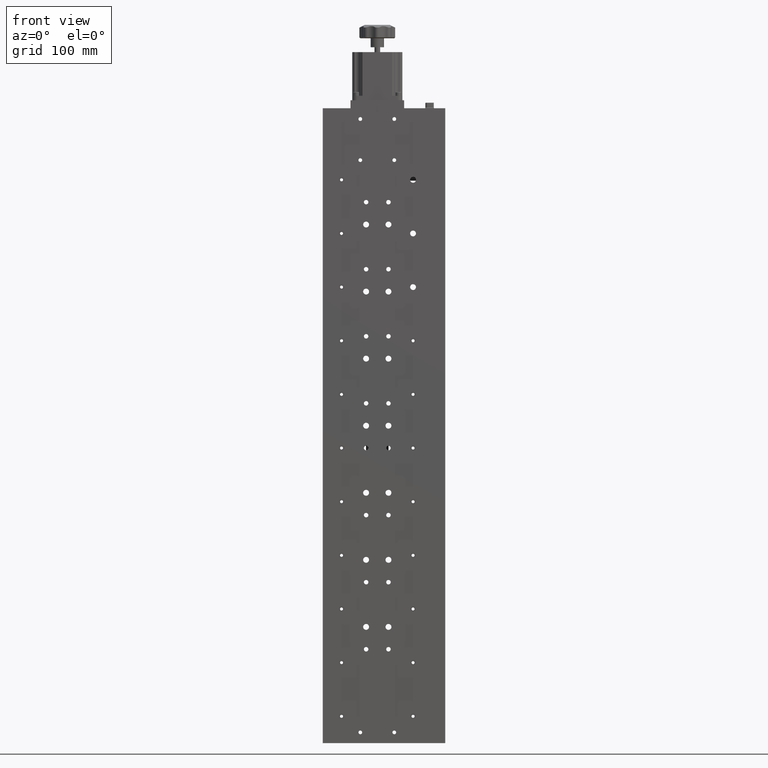
[diagram: clean part render]
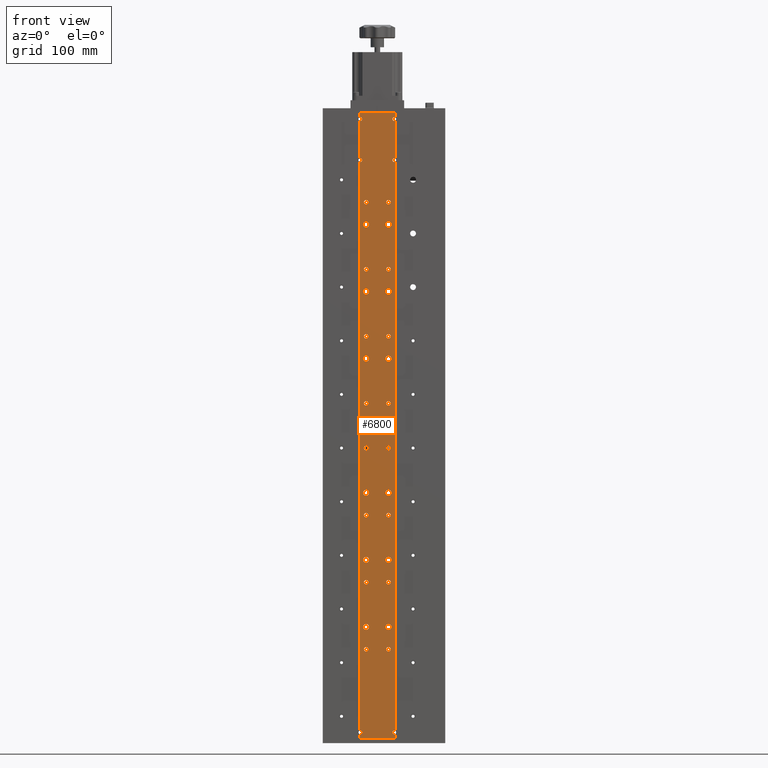
[diagram: same view with one face highlighted and labeled with its STEP entity id]
A machine part, front view. The second image highlights one B-rep face of the part: STEP entity #6800.
In plain terms, the highlighted planar face has unit normal (-0, 1, 0).
Its self-contained STEP definition (entity closure, byte-faithful):
#26 = CARTESIAN_POINT ( 'NONE',  ( -23.11080835603997130, -10.41765062064795266, -224.9999999999999716 ) ) ;
#129 = ORIENTED_EDGE ( 'NONE', *, *, #26567, .T. ) ;
#133 = AXIS2_PLACEMENT_3D ( 'NONE', #20714, #30145, #16394 ) ;
#144 = CARTESIAN_POINT ( 'NONE',  ( -30.61080835603994288, -10.41765062064795266, -341.1533814687379618 ) ) ;
#149 = AXIS2_PLACEMENT_3D ( 'NONE', #9864, #29015, #5538 ) ;
#165 = AXIS2_PLACEMENT_3D ( 'NONE', #5036, #21708, #16626 ) ;
#214 = CARTESIAN_POINT ( 'NONE',  ( -29.61080835603994288, -10.41765062064795266, 299.1000000000000227 ) ) ;
#300 = EDGE_CURVE ( 'NONE', #13090, #27803, #9830, .T. ) ;
#355 = DIRECTION ( 'NONE',  ( -3.689503073101735203E-32, 1.000000000000000000, 0.000000000000000000 ) ) ;
#384 = AXIS2_PLACEMENT_3D ( 'NONE', #19061, #15635, #5760 ) ;
#407 = AXIS2_PLACEMENT_3D ( 'NONE', #13355, #13960, #20598 ) ;
#423 = EDGE_CURVE ( 'NONE', #11713, #19121, #15704, .T. ) ;
#483 = DIRECTION ( 'NONE',  ( -3.689503073101735203E-32, 1.000000000000000000, 0.000000000000000000 ) ) ;
#493 = DIRECTION ( 'NONE',  ( 0.000000000000000000, 0.000000000000000000, 1.000000000000000000 ) ) ;
#515 = DIRECTION ( 'NONE',  ( -3.689503073101735203E-32, 1.000000000000000000, 0.000000000000000000 ) ) ;
#538 = DIRECTION ( 'NONE',  ( -3.689503073101735203E-32, 1.000000000000000000, 0.000000000000000000 ) ) ;
#567 = DIRECTION ( 'NONE',  ( -3.689503073101735203E-32, 1.000000000000000000, 0.000000000000000000 ) ) ;
#607 = CIRCLE ( 'NONE', #19357, 2.500000000000002220 ) ;
#674 = AXIS2_PLACEMENT_3D ( 'NONE', #13708, #25745, #16329 ) ;
#744 = DIRECTION ( 'NONE',  ( -3.689503073101735203E-32, 1.000000000000000000, 0.000000000000000000 ) ) ;
#754 = VERTEX_POINT ( 'NONE', #14335 ) ;
#755 = AXIS2_PLACEMENT_3D ( 'NONE', #3009, #23708, #2559 ) ;
#863 = CARTESIAN_POINT ( 'NONE',  ( -23.11080835603997130, -10.41765062064795266, 153.3000000000000114 ) ) ;
#967 = CIRCLE ( 'NONE', #13305, 2.099999999999992539 ) ;
#1013 = DIRECTION ( 'NONE',  ( 0.000000000000000000, 0.000000000000000000, 1.000000000000000000 ) ) ;
#1030 = CARTESIAN_POINT ( 'NONE',  ( -23.11080835603997130, -10.41765062064795266, -3.299999999999997158 ) ) ;
#1047 = FACE_BOUND ( 'NONE', #15268, .T. ) ;
#1057 = CIRCLE ( 'NONE', #18328, 2.099999999999990763 ) ;
#1200 = FACE_BOUND ( 'NONE', #14668, .T. ) ;
#1287 = CARTESIAN_POINT ( 'NONE',  ( 1.889191643960028255, -10.41765062064795266, -228.2999999999999829 ) ) ;
#1296 = EDGE_CURVE ( 'NONE', #27717, #25334, #1880, .T. ) ;
#1312 = ORIENTED_EDGE ( 'NONE', *, *, #21384, .T. ) ;
#1337 = ORIENTED_EDGE ( 'NONE', *, *, #15959, .T. ) ;
#1354 = FACE_BOUND ( 'NONE', #5102, .T. ) ;
#1361 = CARTESIAN_POINT ( 'NONE',  ( -23.11080835603997130, -10.41765062064795266, 221.6999999999999886 ) ) ;
#1374 = ORIENTED_EDGE ( 'NONE', *, *, #21287, .T. ) ;
#1390 = DIRECTION ( 'NONE',  ( -3.689503073101735203E-32, 1.000000000000000000, 0.000000000000000000 ) ) ;
#1403 = ORIENTED_EDGE ( 'NONE', *, *, #21630, .T. ) ;
#1499 = ORIENTED_EDGE ( 'NONE', *, *, #9810, .T. ) ;
#1510 = CARTESIAN_POINT ( 'NONE',  ( 1.889191643960027811, -10.41765062064795266, 0.000000000000000000 ) ) ;
#1528 = EDGE_CURVE ( 'NONE', #19160, #23508, #26072, .T. ) ;
#1556 = AXIS2_PLACEMENT_3D ( 'NONE', #26962, #29273, #7817 ) ;
#1641 = ORIENTED_EDGE ( 'NONE', *, *, #11686, .T. ) ;
#1653 = CIRCLE ( 'NONE', #165, 2.099999999999990763 ) ;
#1690 = CIRCLE ( 'NONE', #22885, 2.500000000000002220 ) ;
#1703 = DIRECTION ( 'NONE',  ( 0.000000000000000000, 0.000000000000000000, 1.000000000000000000 ) ) ;
#1717 = ORIENTED_EDGE ( 'NONE', *, *, #2264, .T. ) ;
#1734 = CARTESIAN_POINT ( 'NONE',  ( -23.11080835603994288, -10.41765062064795266, -252.4999999999999432 ) ) ;
#1845 = CARTESIAN_POINT ( 'NONE',  ( 8.389191643960051792, -10.41765062064795089, 299.1000000000000227 ) ) ;
#1860 = DIRECTION ( 'NONE',  ( -3.689503073101735203E-32, 1.000000000000000000, 0.000000000000000000 ) ) ;
#1880 = CIRCLE ( 'NONE', #17666, 2.499999999999995115 ) ;
#1891 = DIRECTION ( 'NONE',  ( -3.689503073101735203E-32, 1.000000000000000000, 0.000000000000000000 ) ) ;
#1900 = ORIENTED_EDGE ( 'NONE', *, *, #423, .T. ) ;
#1933 = EDGE_LOOP ( 'NONE', ( #10325, #16321 ) ) ;
#1971 = DIRECTION ( 'NONE',  ( -3.689503073101735203E-32, 1.000000000000000000, 0.000000000000000000 ) ) ;
#1972 = DIRECTION ( 'NONE',  ( 0.000000000000000000, 0.000000000000000000, 1.000000000000000000 ) ) ;
#1998 = CARTESIAN_POINT ( 'NONE',  ( 9.389191643960044686, -10.41765062064795266, -344.8466185312618677 ) ) ;
#2041 = EDGE_CURVE ( 'NONE', #21169, #17340, #15450, .T. ) ;
#2043 = EDGE_LOOP ( 'NONE', ( #14653, #30527 ) ) ;
#2048 = ORIENTED_EDGE ( 'NONE', *, *, #15003, .T. ) ;
#2049 = EDGE_CURVE ( 'NONE', #12492, #7953, #19400, .T. ) ;
#2102 = DIRECTION ( 'NONE',  ( 0.000000000000000000, 0.000000000000000000, 1.000000000000000000 ) ) ;
#2115 = DIRECTION ( 'NONE',  ( -1.000000000000000000, -3.029454718961630664E-18, 0.000000000000000000 ) ) ;
#2138 = CARTESIAN_POINT ( 'NONE',  ( 1.889191643960055567, -10.41765062064795444, 27.50000000000004619 ) ) ;
#2164 = AXIS2_PLACEMENT_3D ( 'NONE', #19977, #18129, #22744 ) ;
#2176 = VERTEX_POINT ( 'NONE', #5026 ) ;
#2189 = EDGE_LOOP ( 'NONE', ( #1900, #20174 ) ) ;
#2201 = CIRCLE ( 'NONE', #2712, 2.500000000000002220 ) ;
#2264 = EDGE_CURVE ( 'NONE', #10556, #28970, #16464, .T. ) ;
#2283 = CIRCLE ( 'NONE', #27439, 3.299999999999997158 ) ;
#2336 = AXIS2_PLACEMENT_3D ( 'NONE', #23726, #4904, #2883 ) ;
#2355 = AXIS2_PLACEMENT_3D ( 'NONE', #26166, #7320, #28775 ) ;
#2386 = VERTEX_POINT ( 'NONE', #4386 ) ;
#2489 = DIRECTION ( 'NONE',  ( -3.029454718961704619E-18, 1.000000000000000000, 0.000000000000000000 ) ) ;
#2559 = DIRECTION ( 'NONE',  ( 0.000000000000000000, 0.000000000000000000, 1.000000000000000000 ) ) ;
#2599 = ORIENTED_EDGE ( 'NONE', *, *, #3012, .T. ) ;
#2622 = CARTESIAN_POINT ( 'NONE',  ( 9.389191643960048239, -10.41765062064795266, 341.1533814687380755 ) ) ;
#2627 = AXIS2_PLACEMENT_3D ( 'NONE', #20783, #18929, #4721 ) ;
#2632 = DIRECTION ( 'NONE',  ( -3.689503073101735203E-32, 1.000000000000000000, 0.000000000000000000 ) ) ;
#2667 = CIRCLE ( 'NONE', #18453, 2.500000000000002220 ) ;
#2711 = CIRCLE ( 'NONE', #19457, 3.299999999999997158 ) ;
#2712 = AXIS2_PLACEMENT_3D ( 'NONE', #11695, #20974, #1972 ) ;
#2769 = CARTESIAN_POINT ( 'NONE',  ( 1.889191643960052014, -10.41765062064795266, -97.49999999999998579 ) ) ;
#2792 = DIRECTION ( 'NONE',  ( 0.000000000000000000, 0.000000000000000000, 1.000000000000000000 ) ) ;
#2820 = CARTESIAN_POINT ( 'NONE',  ( -23.11080835603994288, -10.41765062064795266, 25.00000000000004974 ) ) ;
#2847 = ORIENTED_EDGE ( 'NONE', *, *, #6240, .T. ) ;
#2855 = CARTESIAN_POINT ( 'NONE',  ( 8.389191643960051792, -10.41765062064795444, 343.0000000000000000 ) ) ;
#2866 = VERTEX_POINT ( 'NONE', #28237 ) ;
#2883 = DIRECTION ( 'NONE',  ( -1.000000000000000000, 0.000000000000000000, 0.000000000000000000 ) ) ;
#2887 = VERTEX_POINT ( 'NONE', #2138 ) ;
#2951 = CARTESIAN_POINT ( 'NONE',  ( 1.889191643960027811, -10.41765062064795266, 228.2999999999999829 ) ) ;
#2958 = VERTEX_POINT ( 'NONE', #1030 ) ;
#2960 = DIRECTION ( 'NONE',  ( 0.000000000000000000, 0.000000000000000000, 1.000000000000000000 ) ) ;
#2961 = VERTEX_POINT ( 'NONE', #26373 ) ;
#3009 = CARTESIAN_POINT ( 'NONE',  ( -23.11080835603994288, -10.41765062064795266, 100.0000000000000284 ) ) ;
#3012 = EDGE_CURVE ( 'NONE', #23990, #2176, #7541, .T. ) ;
#3044 = VERTEX_POINT ( 'NONE', #17721 ) ;
#3051 = VERTEX_POINT ( 'NONE', #3353 ) ;
#3162 = DIRECTION ( 'NONE',  ( 0.000000000000000000, 0.000000000000000000, 1.000000000000000000 ) ) ;
#3173 = VERTEX_POINT ( 'NONE', #8749 ) ;
#3183 = AXIS2_PLACEMENT_3D ( 'NONE', #1510, #29636, #10623 ) ;
#3200 = VECTOR ( 'NONE', #5656, 1000.000000000000000 ) ;
#3210 = FACE_BOUND ( 'NONE', #27963, .T. ) ;
#3235 = DIRECTION ( 'NONE',  ( -3.689503073101735203E-32, 1.000000000000000000, 0.000000000000000000 ) ) ;
#3250 = CARTESIAN_POINT ( 'NONE',  ( 9.389191643960051792, -10.41765062064795089, -350.0000000000000000 ) ) ;
#3254 = EDGE_CURVE ( 'NONE', #19291, #28189, #1653, .T. ) ;
#3265 = AXIS2_PLACEMENT_3D ( 'NONE', #9829, #19256, #21725 ) ;
#3269 = DIRECTION ( 'NONE',  ( 0.000000000000000000, 0.000000000000000000, 1.000000000000000000 ) ) ;
#3302 = EDGE_CURVE ( 'NONE', #6795, #11933, #22339, .T. ) ;
#3353 = CARTESIAN_POINT ( 'NONE',  ( 1.889191643960066003, -10.41765062064795266, -172.4999999999999716 ) ) ;
#3399 = DIRECTION ( 'NONE',  ( 0.000000000000000000, 0.000000000000000000, -1.000000000000000000 ) ) ;
#3435 = CIRCLE ( 'NONE', #7387, 2.499999999999995115 ) ;
#3452 = CIRCLE ( 'NONE', #4461, 2.500000000000002220 ) ;
#3457 = CARTESIAN_POINT ( 'NONE',  ( 1.889191643960027811, -10.41765062064795266, 75.00000000000001421 ) ) ;
#3500 = CARTESIAN_POINT ( 'NONE',  ( 1.889191643960052014, -10.41765062064795266, -99.99999999999998579 ) ) ;
#3515 = FACE_BOUND ( 'NONE', #8944, .T. ) ;
#3630 = CARTESIAN_POINT ( 'NONE',  ( 9.389191643960044686, -10.41765062064795266, 295.1533814687380186 ) ) ;
#3671 = FACE_BOUND ( 'NONE', #9259, .T. ) ;
#3724 = EDGE_CURVE ( 'NONE', #29209, #17014, #4058, .T. ) ;
#3742 = CIRCLE ( 'NONE', #8193, 2.499999999999995115 ) ;
#3848 = DIRECTION ( 'NONE',  ( 0.000000000000000000, 0.000000000000000000, -1.000000000000000000 ) ) ;
#3854 = EDGE_CURVE ( 'NONE', #12596, #6245, #607, .T. ) ;
#3879 = ORIENTED_EDGE ( 'NONE', *, *, #29703, .T. ) ;
#3978 = CIRCLE ( 'NONE', #27659, 2.500000000000002220 ) ;
#3996 = ORIENTED_EDGE ( 'NONE', *, *, #18967, .T. ) ;
#4058 = CIRCLE ( 'NONE', #21316, 2.099999999999990763 ) ;
#4135 = DIRECTION ( 'NONE',  ( -3.029454718961630664E-18, 1.000000000000000000, 0.000000000000000000 ) ) ;
#4148 = VECTOR ( 'NONE', #8154, 1000.000000000000000 ) ;
#4176 = ORIENTED_EDGE ( 'NONE', *, *, #14738, .T. ) ;
#4386 = CARTESIAN_POINT ( 'NONE',  ( 1.889191643960055789, -10.41765062064795266, 247.5000000000001137 ) ) ;
#4461 = AXIS2_PLACEMENT_3D ( 'NONE', #14788, #18826, #24196 ) ;
#4545 = AXIS2_PLACEMENT_3D ( 'NONE', #5466, #19964, #15028 ) ;
#4721 = DIRECTION ( 'NONE',  ( 0.000000000000000000, 0.000000000000000000, 1.000000000000000000 ) ) ;
#4729 = CARTESIAN_POINT ( 'NONE',  ( 8.389191643960051792, -10.41765062064795089, -343.0000000000000000 ) ) ;
#4733 = EDGE_CURVE ( 'NONE', #29938, #3051, #11138, .T. ) ;
#4768 = AXIS2_PLACEMENT_3D ( 'NONE', #7239, #9847, #6794 ) ;
#4820 = CIRCLE ( 'NONE', #20601, 2.499999999999995115 ) ;
#4835 = CARTESIAN_POINT ( 'NONE',  ( -23.11080835603994288, -10.41765062064795266, 102.5000000000000284 ) ) ;
#4904 = DIRECTION ( 'NONE',  ( -3.029454718961704619E-18, 1.000000000000000000, 0.000000000000000000 ) ) ;
#4911 = CIRCLE ( 'NONE', #25127, 2.099999999999990763 ) ;
#4935 = DIRECTION ( 'NONE',  ( -3.689503073101735203E-32, 1.000000000000000000, 0.000000000000000000 ) ) ;
#5013 = ORIENTED_EDGE ( 'NONE', *, *, #19711, .T. ) ;
#5026 = CARTESIAN_POINT ( 'NONE',  ( 1.889191643960052236, -10.41765062064795266, -102.5000000000000000 ) ) ;
#5036 = CARTESIAN_POINT ( 'NONE',  ( -29.61080835603994288, -10.41765062064795089, -343.0000000000000000 ) ) ;
#5102 = EDGE_LOOP ( 'NONE', ( #30090, #22959 ) ) ;
#5215 = CIRCLE ( 'NONE', #28406, 2.099999999999990763 ) ;
#5245 = CARTESIAN_POINT ( 'NONE',  ( 1.889191643960055567, -10.41765062064795266, -247.4999999999999716 ) ) ;
#5466 = CARTESIAN_POINT ( 'NONE',  ( 1.889191643960055567, -10.41765062064795266, 250.0000000000001137 ) ) ;
#5467 = EDGE_CURVE ( 'NONE', #3051, #29938, #3452, .T. ) ;
#5469 = DIRECTION ( 'NONE',  ( 0.000000000000000000, 0.000000000000000000, 1.000000000000000000 ) ) ;
#5490 = VERTEX_POINT ( 'NONE', #19117 ) ;
#5538 = DIRECTION ( 'NONE',  ( -1.000000000000000000, 0.000000000000000000, 0.000000000000000000 ) ) ;
#5656 = DIRECTION ( 'NONE',  ( 0.000000000000000000, 0.000000000000000000, 1.000000000000000000 ) ) ;
#5683 = FACE_BOUND ( 'NONE', #24206, .T. ) ;
#5760 = DIRECTION ( 'NONE',  ( 0.000000000000000000, 0.000000000000000000, 1.000000000000000000 ) ) ;
#5775 = CARTESIAN_POINT ( 'NONE',  ( -23.11080835603994998, -10.41765062064795266, -177.4999999999999716 ) ) ;
#5841 = FACE_BOUND ( 'NONE', #26925, .T. ) ;
#5860 = DIRECTION ( 'NONE',  ( -3.689503073101735203E-32, 1.000000000000000000, 0.000000000000000000 ) ) ;
#6028 = EDGE_LOOP ( 'NONE', ( #9817, #12543, #20811, #20456, #24751, #24488, #24784, #1312, #18941, #29361, #23869, #4176, #7497, #19783, #19381, #2048, #14623, #29622, #25089, #21821, #19396, #24565, #1403, #15834, #10258, #20148, #23706, #1717 ) ) ;
#6035 = CIRCLE ( 'NONE', #9966, 3.299999999999997158 ) ;
#6038 = CARTESIAN_POINT ( 'NONE',  ( -23.11080835603997130, -10.41765062064795266, -75.00000000000000000 ) ) ;
#6062 = CARTESIAN_POINT ( 'NONE',  ( -23.11080835603995709, -10.41765062064795266, 175.0000000000000284 ) ) ;
#6152 = CARTESIAN_POINT ( 'NONE',  ( 1.889191643960055567, -10.41765062064795266, -22.50000000000000000 ) ) ;
#6181 = EDGE_CURVE ( 'NONE', #17603, #24343, #3978, .T. ) ;
#6203 = CARTESIAN_POINT ( 'NONE',  ( -23.11080835603995709, -10.41765062064795266, -174.9999999999999716 ) ) ;
#6240 = EDGE_CURVE ( 'NONE', #24516, #25991, #12891, .T. ) ;
#6245 = VERTEX_POINT ( 'NONE', #23523 ) ;
#6299 = FACE_BOUND ( 'NONE', #6338, .T. ) ;
#6314 = CIRCLE ( 'NONE', #13219, 2.099999999999990763 ) ;
#6338 = EDGE_LOOP ( 'NONE', ( #13265, #17628 ) ) ;
#6375 = CARTESIAN_POINT ( 'NONE',  ( -30.61080835603994998, -10.41765062064795089, -390.0780488547032974 ) ) ;
#6425 = DIRECTION ( 'NONE',  ( -3.689503073101735203E-32, 1.000000000000000000, 0.000000000000000000 ) ) ;
#6456 = AXIS2_PLACEMENT_3D ( 'NONE', #22819, #27169, #15271 ) ;
#6538 = CARTESIAN_POINT ( 'NONE',  ( -23.11080835603997130, -10.41765062064795266, -71.70000000000000284 ) ) ;
#6637 = VERTEX_POINT ( 'NONE', #21898 ) ;
#6653 = LINE ( 'NONE', #16079, #28892 ) ;
#6749 = VERTEX_POINT ( 'NONE', #6152 ) ;
#6790 = AXIS2_PLACEMENT_3D ( 'NONE', #11873, #23740, #12026 ) ;
#6794 = DIRECTION ( 'NONE',  ( 0.000000000000000000, 0.000000000000000000, 1.000000000000000000 ) ) ;
#6795 = VERTEX_POINT ( 'NONE', #27311 ) ;
#6800 = ADVANCED_FACE ( 'NONE', ( #15564, #17578, #27461, #3515, #6299, #29153, #1354, #24363, #20194, #3210, #15406, #3671, #12649, #26998, #1047, #22048, #17417, #10461, #5683, #19886, #29316, #8158, #5841, #15251, #12953, #22347, #1200, #29628, #29477, #8306, #17729 ), #16335, .F. ) ;
#6839 = ORIENTED_EDGE ( 'NONE', *, *, #14576, .T. ) ;
#6890 = CARTESIAN_POINT ( 'NONE',  ( 1.889191643960055567, -10.41765062064795444, 25.00000000000004974 ) ) ;
#6925 = CARTESIAN_POINT ( 'NONE',  ( -23.11080835603994288, -10.41765062064795266, 247.5000000000000000 ) ) ;
#6980 = EDGE_LOOP ( 'NONE', ( #7748, #9014 ) ) ;
#7002 = CIRCLE ( 'NONE', #14884, 2.499999999999995115 ) ;
#7018 = VERTEX_POINT ( 'NONE', #11846 ) ;
#7067 = CARTESIAN_POINT ( 'NONE',  ( -23.11080835603994998, -10.41765062064795266, 172.5000000000000284 ) ) ;
#7111 = DIRECTION ( 'NONE',  ( 0.000000000000000000, 0.000000000000000000, 1.000000000000000000 ) ) ;
#7153 = ORIENTED_EDGE ( 'NONE', *, *, #4733, .T. ) ;
#7180 = EDGE_CURVE ( 'NONE', #24406, #24535, #21773, .T. ) ;
#7224 = LINE ( 'NONE', #11699, #26117 ) ;
#7239 = CARTESIAN_POINT ( 'NONE',  ( -23.11080835603997841, -10.41765062064795266, 75.00000000000000000 ) ) ;
#7241 = EDGE_CURVE ( 'NONE', #10920, #26089, #22756, .T. ) ;
#7260 = ORIENTED_EDGE ( 'NONE', *, *, #18988, .T. ) ;
#7303 = CIRCLE ( 'NONE', #18142, 3.299999999999997158 ) ;
#7320 = DIRECTION ( 'NONE',  ( -3.689503073101735203E-32, 1.000000000000000000, 0.000000000000000000 ) ) ;
#7361 = CIRCLE ( 'NONE', #27098, 3.299999999999997158 ) ;
#7387 = AXIS2_PLACEMENT_3D ( 'NONE', #9041, #6425, #11351 ) ;
#7417 = EDGE_CURVE ( 'NONE', #9842, #26967, #14895, .T. ) ;
#7423 = CARTESIAN_POINT ( 'NONE',  ( -23.11080835603997130, -10.41765062064795266, -75.00000000000000000 ) ) ;
#7436 = DIRECTION ( 'NONE',  ( -3.029454718961704619E-18, 1.000000000000000000, 0.000000000000000000 ) ) ;
#7447 = CARTESIAN_POINT ( 'NONE',  ( 1.889191643960028255, -10.41765062064795266, -153.2999999999999829 ) ) ;
#7497 = ORIENTED_EDGE ( 'NONE', *, *, #27220, .T. ) ;
#7521 = EDGE_CURVE ( 'NONE', #2386, #12454, #8971, .T. ) ;
#7541 = CIRCLE ( 'NONE', #24790, 2.500000000000002220 ) ;
#7604 = VECTOR ( 'NONE', #27498, 1000.000000000000000 ) ;
#7676 = CARTESIAN_POINT ( 'NONE',  ( -23.11080835603995709, -10.41765062064795266, -174.9999999999999716 ) ) ;
#7748 = ORIENTED_EDGE ( 'NONE', *, *, #15506, .T. ) ;
#7750 = DIRECTION ( 'NONE',  ( -3.689503073101735203E-32, 1.000000000000000000, 0.000000000000000000 ) ) ;
#7817 = DIRECTION ( 'NONE',  ( -1.000000000000000000, 0.000000000000000000, 0.000000000000000000 ) ) ;
#7953 = VERTEX_POINT ( 'NONE', #1361 ) ;
#7975 = CARTESIAN_POINT ( 'NONE',  ( 9.389191643960055345, -10.41765062064795089, -390.0780488547034111 ) ) ;
#7995 = LINE ( 'NONE', #24819, #4148 ) ;
#8010 = CARTESIAN_POINT ( 'NONE',  ( 1.889191643960055789, -10.41765062064795266, -252.4999999999999432 ) ) ;
#8025 = DIRECTION ( 'NONE',  ( -3.689503073101735203E-32, 1.000000000000000000, 0.000000000000000000 ) ) ;
#8098 = EDGE_CURVE ( 'NONE', #12464, #21329, #16434, .T. ) ;
#8154 = DIRECTION ( 'NONE',  ( -1.000000000000000000, -3.029454718961630664E-18, 0.000000000000000000 ) ) ;
#8158 = FACE_BOUND ( 'NONE', #29952, .T. ) ;
#8166 = CARTESIAN_POINT ( 'NONE',  ( -30.61080835603994998, -10.41765062064795089, 350.0000000000001137 ) ) ;
#8179 = CARTESIAN_POINT ( 'NONE',  ( -30.61080835603994998, -10.41765062064795089, -390.0780488547032974 ) ) ;
#8193 = AXIS2_PLACEMENT_3D ( 'NONE', #10054, #7750, #12540 ) ;
#8197 = ORIENTED_EDGE ( 'NONE', *, *, #6181, .T. ) ;
#8221 = DIRECTION ( 'NONE',  ( 0.000000000000000000, 0.000000000000000000, 1.000000000000000000 ) ) ;
#8282 = ORIENTED_EDGE ( 'NONE', *, *, #12114, .T. ) ;
#8293 = AXIS2_PLACEMENT_3D ( 'NONE', #16688, #2632, #12057 ) ;
#8306 = FACE_BOUND ( 'NONE', #6980, .T. ) ;
#8411 = CARTESIAN_POINT ( 'NONE',  ( -23.11080835603994288, -10.41765062064795266, 252.5000000000000000 ) ) ;
#8643 = AXIS2_PLACEMENT_3D ( 'NONE', #19983, #13050, #24763 ) ;
#8727 = VERTEX_POINT ( 'NONE', #1998 ) ;
#8749 = CARTESIAN_POINT ( 'NONE',  ( 1.889191643960055789, -10.41765062064795266, -27.49999999999998934 ) ) ;
#8828 = CIRCLE ( 'NONE', #26095, 2.099999999999990763 ) ;
#8899 = VERTEX_POINT ( 'NONE', #26533 ) ;
#8918 = EDGE_CURVE ( 'NONE', #19643, #25773, #7995, .T. ) ;
#8943 = EDGE_CURVE ( 'NONE', #12454, #2386, #2667, .T. ) ;
#8944 = EDGE_LOOP ( 'NONE', ( #2847, #29812 ) ) ;
#8965 = LINE ( 'NONE', #9423, #15580 ) ;
#8971 = CIRCLE ( 'NONE', #4545, 2.500000000000002220 ) ;
#9014 = ORIENTED_EDGE ( 'NONE', *, *, #8098, .T. ) ;
#9041 = CARTESIAN_POINT ( 'NONE',  ( 1.889191643960055567, -10.41765062064795266, -24.99999999999999289 ) ) ;
#9093 = EDGE_CURVE ( 'NONE', #14358, #19838, #28311, .T. ) ;
#9185 = AXIS2_PLACEMENT_3D ( 'NONE', #15733, #5860, #17748 ) ;
#9206 = CARTESIAN_POINT ( 'NONE',  ( -29.61080835603994288, -10.41765062064795266, 343.0000000000000000 ) ) ;
#9228 = CIRCLE ( 'NONE', #4768, 3.299999999999997158 ) ;
#9236 = CARTESIAN_POINT ( 'NONE',  ( 1.889191643960055567, -10.41765062064795266, -249.9999999999999716 ) ) ;
#9259 = EDGE_LOOP ( 'NONE', ( #29630, #29969 ) ) ;
#9273 = DIRECTION ( 'NONE',  ( 0.000000000000000000, 0.000000000000000000, 1.000000000000000000 ) ) ;
#9317 = VERTEX_POINT ( 'NONE', #26614 ) ;
#9336 = VERTEX_POINT ( 'NONE', #28927 ) ;
#9338 = EDGE_CURVE ( 'NONE', #28970, #18705, #20575, .T. ) ;
#9398 = VERTEX_POINT ( 'NONE', #1734 ) ;
#9423 = CARTESIAN_POINT ( 'NONE',  ( 9.389191643960055345, -10.41765062064795089, -390.0780488547034111 ) ) ;
#9523 = AXIS2_PLACEMENT_3D ( 'NONE', #28650, #538, #19389 ) ;
#9601 = VERTEX_POINT ( 'NONE', #21044 ) ;
#9623 = DIRECTION ( 'NONE',  ( 0.000000000000000000, 0.000000000000000000, 1.000000000000000000 ) ) ;
#9729 = DIRECTION ( 'NONE',  ( -3.689503073101735203E-32, 1.000000000000000000, 0.000000000000000000 ) ) ;
#9777 = EDGE_CURVE ( 'NONE', #13334, #29209, #10956, .T. ) ;
#9783 = EDGE_LOOP ( 'NONE', ( #17544, #1641 ) ) ;
#9810 = EDGE_CURVE ( 'NONE', #21645, #24707, #28825, .T. ) ;
#9817 = ORIENTED_EDGE ( 'NONE', *, *, #9338, .T. ) ;
#9829 = CARTESIAN_POINT ( 'NONE',  ( 8.389191643960051792, -10.41765062064795444, 343.0000000000000000 ) ) ;
#9830 = CIRCLE ( 'NONE', #27103, 3.299999999999997158 ) ;
#9842 = VERTEX_POINT ( 'NONE', #29352 ) ;
#9847 = DIRECTION ( 'NONE',  ( -3.689503073101735203E-32, 1.000000000000000000, 0.000000000000000000 ) ) ;
#9864 = CARTESIAN_POINT ( 'NONE',  ( 8.389191643960051792, -10.41765062064795089, -343.0000000000000000 ) ) ;
#9865 = VERTEX_POINT ( 'NONE', #1845 ) ;
#9883 = EDGE_LOOP ( 'NONE', ( #1499, #3879 ) ) ;
#9966 = AXIS2_PLACEMENT_3D ( 'NONE', #17167, #26594, #3269 ) ;
#9972 = CARTESIAN_POINT ( 'NONE',  ( 8.389191643960057121, -10.41765062064795089, -340.8999999999999773 ) ) ;
#10054 = CARTESIAN_POINT ( 'NONE',  ( -23.11080835603994288, -10.41765062064795089, -24.99999999999999289 ) ) ;
#10136 = DIRECTION ( 'NONE',  ( -3.689503073101735203E-32, 1.000000000000000000, 0.000000000000000000 ) ) ;
#10194 = CARTESIAN_POINT ( 'NONE',  ( -23.11080835603995709, -10.41765062064795266, -172.4999999999999716 ) ) ;
#10258 = ORIENTED_EDGE ( 'NONE', *, *, #9777, .T. ) ;
#10325 = ORIENTED_EDGE ( 'NONE', *, *, #2041, .T. ) ;
#10338 = CIRCLE ( 'NONE', #25151, 2.499999999999995115 ) ;
#10369 = DIRECTION ( 'NONE',  ( -3.689503073101735203E-32, 1.000000000000000000, 0.000000000000000000 ) ) ;
#10461 = FACE_BOUND ( 'NONE', #26103, .T. ) ;
#10522 = CARTESIAN_POINT ( 'NONE',  ( 9.389191643960058897, -10.41765062064795266, 350.0000000000000000 ) ) ;
#10556 = VERTEX_POINT ( 'NONE', #16617 ) ;
#10623 = DIRECTION ( 'NONE',  ( 0.000000000000000000, 0.000000000000000000, 1.000000000000000000 ) ) ;
#10708 = CIRCLE ( 'NONE', #28469, 2.099999999999992539 ) ;
#10711 = EDGE_CURVE ( 'NONE', #13972, #6637, #2711, .T. ) ;
#10728 = DIRECTION ( 'NONE',  ( -3.689503073101735203E-32, 1.000000000000000000, 0.000000000000000000 ) ) ;
#10777 = CIRCLE ( 'NONE', #407, 2.499999999999995115 ) ;
#10838 = DIRECTION ( 'NONE',  ( -3.689503073101735203E-32, 1.000000000000000000, 0.000000000000000000 ) ) ;
#10862 = DIRECTION ( 'NONE',  ( 0.000000000000000000, 0.000000000000000000, 1.000000000000000000 ) ) ;
#10880 = VERTEX_POINT ( 'NONE', #23210 ) ;
#10920 = VERTEX_POINT ( 'NONE', #24117 ) ;
#10956 = LINE ( 'NONE', #29510, #15515 ) ;
#10958 = EDGE_CURVE ( 'NONE', #2176, #23990, #18476, .T. ) ;
#10976 = VERTEX_POINT ( 'NONE', #4835 ) ;
#11138 = CIRCLE ( 'NONE', #19034, 2.500000000000002220 ) ;
#11312 = DIRECTION ( 'NONE',  ( 0.000000000000000000, 0.000000000000000000, 1.000000000000000000 ) ) ;
#11351 = DIRECTION ( 'NONE',  ( 0.000000000000000000, 0.000000000000000000, 1.000000000000000000 ) ) ;
#11370 = DIRECTION ( 'NONE',  ( -3.689503073101735203E-32, 1.000000000000000000, 0.000000000000000000 ) ) ;
#11408 = CIRCLE ( 'NONE', #29669, 2.500000000000002220 ) ;
#11511 = DIRECTION ( 'NONE',  ( -3.689503073101735203E-32, 1.000000000000000000, 0.000000000000000000 ) ) ;
#11521 = DIRECTION ( 'NONE',  ( -3.689503073101735203E-32, 1.000000000000000000, 0.000000000000000000 ) ) ;
#11571 = CIRCLE ( 'NONE', #3183, 3.299999999999997158 ) ;
#11585 = DIRECTION ( 'NONE',  ( -3.689503073101735203E-32, 1.000000000000000000, 0.000000000000000000 ) ) ;
#11611 = EDGE_CURVE ( 'NONE', #24535, #7018, #18029, .T. ) ;
#11637 = EDGE_CURVE ( 'NONE', #26967, #9842, #29881, .T. ) ;
#11649 = DIRECTION ( 'NONE',  ( 0.000000000000000000, 0.000000000000000000, 1.000000000000000000 ) ) ;
#11686 = EDGE_CURVE ( 'NONE', #28095, #10976, #27407, .T. ) ;
#11695 = CARTESIAN_POINT ( 'NONE',  ( -23.11080835603994288, -10.41765062064795266, -249.9999999999999716 ) ) ;
#11699 = CARTESIAN_POINT ( 'NONE',  ( -74.98580835603993933, -10.41765062064795089, -350.0000000000000000 ) ) ;
#11713 = VERTEX_POINT ( 'NONE', #11983 ) ;
#11801 = CARTESIAN_POINT ( 'NONE',  ( -29.61080835603994288, -10.41765062064795266, 297.0000000000000568 ) ) ;
#11846 = CARTESIAN_POINT ( 'NONE',  ( 9.389191643960051792, -10.41765062064795266, -341.1533814687379618 ) ) ;
#11869 = EDGE_CURVE ( 'NONE', #6637, #13972, #23460, .T. ) ;
#11873 = CARTESIAN_POINT ( 'NONE',  ( -29.61080835603994288, -10.41765062064795266, 343.0000000000000000 ) ) ;
#11894 = DIRECTION ( 'NONE',  ( 0.000000000000000000, 0.000000000000000000, 1.000000000000000000 ) ) ;
#11911 = DIRECTION ( 'NONE',  ( -1.000000000000000000, 0.000000000000000000, 0.000000000000000000 ) ) ;
#11933 = VERTEX_POINT ( 'NONE', #23799 ) ;
#11983 = CARTESIAN_POINT ( 'NONE',  ( -23.11080835603997130, -10.41765062064795266, -221.6999999999999886 ) ) ;
#11985 = DIRECTION ( 'NONE',  ( -3.689503073101735203E-32, 1.000000000000000000, 0.000000000000000000 ) ) ;
#12026 = DIRECTION ( 'NONE',  ( 0.000000000000000000, 0.000000000000000000, 1.000000000000000000 ) ) ;
#12057 = DIRECTION ( 'NONE',  ( 0.000000000000000000, 0.000000000000000000, 1.000000000000000000 ) ) ;
#12064 = VERTEX_POINT ( 'NONE', #12843 ) ;
#12114 = EDGE_CURVE ( 'NONE', #23508, #19160, #24427, .T. ) ;
#12146 = AXIS2_PLACEMENT_3D ( 'NONE', #29519, #29676, #24561 ) ;
#12149 = ORIENTED_EDGE ( 'NONE', *, *, #5467, .T. ) ;
#12181 = EDGE_CURVE ( 'NONE', #21161, #19291, #5215, .T. ) ;
#12238 = AXIS2_PLACEMENT_3D ( 'NONE', #26, #1891, #11312 ) ;
#12268 = EDGE_LOOP ( 'NONE', ( #6839, #12532 ) ) ;
#12272 = DIRECTION ( 'NONE',  ( 0.000000000000000000, 0.000000000000000000, 1.000000000000000000 ) ) ;
#12365 = CARTESIAN_POINT ( 'NONE',  ( 1.889191643960055567, -10.41765062064795266, -249.9999999999999716 ) ) ;
#12384 = CIRCLE ( 'NONE', #6456, 3.299999999999997158 ) ;
#12437 = DIRECTION ( 'NONE',  ( 0.000000000000000000, 0.000000000000000000, 1.000000000000000000 ) ) ;
#12454 = VERTEX_POINT ( 'NONE', #12811 ) ;
#12464 = VERTEX_POINT ( 'NONE', #8010 ) ;
#12492 = VERTEX_POINT ( 'NONE', #26854 ) ;
#12519 = CARTESIAN_POINT ( 'NONE',  ( -23.11080835603997130, -10.41765062064795266, 71.70000000000000284 ) ) ;
#12532 = ORIENTED_EDGE ( 'NONE', *, *, #9093, .T. ) ;
#12534 = DIRECTION ( 'NONE',  ( -1.000000000000000000, 0.000000000000000000, 0.000000000000000000 ) ) ;
#12540 = DIRECTION ( 'NONE',  ( 0.000000000000000000, 0.000000000000000000, 1.000000000000000000 ) ) ;
#12543 = ORIENTED_EDGE ( 'NONE', *, *, #20842, .T. ) ;
#12554 = DIRECTION ( 'NONE',  ( -3.689503073101735203E-32, 1.000000000000000000, 0.000000000000000000 ) ) ;
#12596 = VERTEX_POINT ( 'NONE', #7067 ) ;
#12602 = CARTESIAN_POINT ( 'NONE',  ( -29.61080835603994288, -10.41765062064795089, -343.0000000000000000 ) ) ;
#12634 = DIRECTION ( 'NONE',  ( 0.000000000000000000, 0.000000000000000000, 1.000000000000000000 ) ) ;
#12649 = FACE_BOUND ( 'NONE', #26122, .T. ) ;
#12672 = DIRECTION ( 'NONE',  ( 0.000000000000000000, 0.000000000000000000, 1.000000000000000000 ) ) ;
#12759 = AXIS2_PLACEMENT_3D ( 'NONE', #7423, #19159, #2792 ) ;
#12767 = CARTESIAN_POINT ( 'NONE',  ( 1.889191643960028255, -10.41765062064795266, 71.70000000000001705 ) ) ;
#12791 = EDGE_CURVE ( 'NONE', #21700, #2866, #27881, .T. ) ;
#12811 = CARTESIAN_POINT ( 'NONE',  ( 1.889191643960055567, -10.41765062064795266, 252.5000000000001137 ) ) ;
#12812 = EDGE_CURVE ( 'NONE', #28043, #18115, #17991, .T. ) ;
#12843 = CARTESIAN_POINT ( 'NONE',  ( 1.889191643960027811, -10.41765062064795266, -146.6999999999999886 ) ) ;
#12891 = CIRCLE ( 'NONE', #20260, 3.299999999999997158 ) ;
#12926 = EDGE_CURVE ( 'NONE', #27956, #8727, #29448, .T. ) ;
#12953 = FACE_BOUND ( 'NONE', #9883, .T. ) ;
#13050 = DIRECTION ( 'NONE',  ( -3.689503073101735203E-32, 1.000000000000000000, 0.000000000000000000 ) ) ;
#13090 = VERTEX_POINT ( 'NONE', #14444 ) ;
#13151 = LINE ( 'NONE', #29972, #7604 ) ;
#13219 = AXIS2_PLACEMENT_3D ( 'NONE', #2855, #21698, #12437 ) ;
#13265 = ORIENTED_EDGE ( 'NONE', *, *, #11869, .T. ) ;
#13304 = DIRECTION ( 'NONE',  ( 0.000000000000000000, 0.000000000000000000, 1.000000000000000000 ) ) ;
#13305 = AXIS2_PLACEMENT_3D ( 'NONE', #28595, #7436, #12534 ) ;
#13334 = VERTEX_POINT ( 'NONE', #14218 ) ;
#13355 = CARTESIAN_POINT ( 'NONE',  ( 1.889191643960055567, -10.41765062064795266, -24.99999999999999289 ) ) ;
#13447 = DIRECTION ( 'NONE',  ( -3.689503073101735203E-32, 1.000000000000000000, 0.000000000000000000 ) ) ;
#13601 = EDGE_CURVE ( 'NONE', #24343, #17603, #19038, .T. ) ;
#13708 = CARTESIAN_POINT ( 'NONE',  ( -23.11080835603997841, -10.41765062064795266, 75.00000000000000000 ) ) ;
#13719 = CIRCLE ( 'NONE', #384, 2.500000000000002220 ) ;
#13764 = DIRECTION ( 'NONE',  ( 0.000000000000000000, 0.000000000000000000, 1.000000000000000000 ) ) ;
#13860 = CARTESIAN_POINT ( 'NONE',  ( -23.11080835603994288, -10.41765062064795266, -102.5000000000000142 ) ) ;
#13871 = CARTESIAN_POINT ( 'NONE',  ( 1.889191643960052014, -10.41765062064795266, 102.5000000000000426 ) ) ;
#13960 = DIRECTION ( 'NONE',  ( -3.689503073101735203E-32, 1.000000000000000000, 0.000000000000000000 ) ) ;
#13972 = VERTEX_POINT ( 'NONE', #12767 ) ;
#14000 = CARTESIAN_POINT ( 'NONE',  ( 1.889191643960066003, -10.41765062064795266, 175.0000000000000284 ) ) ;
#14012 = VERTEX_POINT ( 'NONE', #29122 ) ;
#14020 = DIRECTION ( 'NONE',  ( 0.000000000000000000, 0.000000000000000000, 1.000000000000000000 ) ) ;
#14031 = CARTESIAN_POINT ( 'NONE',  ( -23.11080835603997130, -10.41765062064795266, -78.29999999999999716 ) ) ;
#14051 = EDGE_CURVE ( 'NONE', #5490, #2958, #2283, .T. ) ;
#14078 = DIRECTION ( 'NONE',  ( 0.000000000000000000, 0.000000000000000000, 1.000000000000000000 ) ) ;
#14118 = CARTESIAN_POINT ( 'NONE',  ( -29.61080835603994288, -10.41765062064795089, -340.8999999999999773 ) ) ;
#14218 = CARTESIAN_POINT ( 'NONE',  ( -30.61080835603994288, -10.41765062064795089, 341.1533814687380755 ) ) ;
#14335 = CARTESIAN_POINT ( 'NONE',  ( -23.11080835603994288, -10.41765062064795266, 22.50000000000005329 ) ) ;
#14358 = VERTEX_POINT ( 'NONE', #12519 ) ;
#14442 = CIRCLE ( 'NONE', #133, 3.299999999999997158 ) ;
#14444 = CARTESIAN_POINT ( 'NONE',  ( 1.889191643960028255, -10.41765062064795266, -78.29999999999998295 ) ) ;
#14486 = VERTEX_POINT ( 'NONE', #20530 ) ;
#14532 = VECTOR ( 'NONE', #22876, 1000.000000000000000 ) ;
#14576 = EDGE_CURVE ( 'NONE', #19838, #14358, #9228, .T. ) ;
#14623 = ORIENTED_EDGE ( 'NONE', *, *, #12791, .T. ) ;
#14644 = EDGE_CURVE ( 'NONE', #8899, #13334, #27993, .T. ) ;
#14653 = ORIENTED_EDGE ( 'NONE', *, *, #14051, .T. ) ;
#14656 = CARTESIAN_POINT ( 'NONE',  ( 1.889191643960027811, -10.41765062064795266, 3.299999999999997158 ) ) ;
#14668 = EDGE_LOOP ( 'NONE', ( #12149, #7153 ) ) ;
#14714 = CARTESIAN_POINT ( 'NONE',  ( 1.889191643960052014, -10.41765062064795266, -99.99999999999998579 ) ) ;
#14738 = EDGE_CURVE ( 'NONE', #28312, #3044, #10708, .T. ) ;
#14788 = CARTESIAN_POINT ( 'NONE',  ( 1.889191643960066003, -10.41765062064795266, -174.9999999999999716 ) ) ;
#14857 = DIRECTION ( 'NONE',  ( 0.000000000000000000, 0.000000000000000000, 1.000000000000000000 ) ) ;
#14884 = AXIS2_PLACEMENT_3D ( 'NONE', #2820, #12554, #26599 ) ;
#14895 = CIRCLE ( 'NONE', #19827, 2.500000000000002220 ) ;
#14969 = CARTESIAN_POINT ( 'NONE',  ( -23.11080835603997130, -10.41765062064795266, -150.0000000000000000 ) ) ;
#15003 = EDGE_CURVE ( 'NONE', #30153, #21700, #6314, .T. ) ;
#15028 = DIRECTION ( 'NONE',  ( 0.000000000000000000, 0.000000000000000000, 1.000000000000000000 ) ) ;
#15170 = CIRCLE ( 'NONE', #2355, 3.299999999999997158 ) ;
#15172 = ORIENTED_EDGE ( 'NONE', *, *, #26424, .T. ) ;
#15247 = EDGE_LOOP ( 'NONE', ( #27628, #16017 ) ) ;
#15251 = FACE_BOUND ( 'NONE', #26250, .T. ) ;
#15268 = EDGE_LOOP ( 'NONE', ( #23238, #129 ) ) ;
#15271 = DIRECTION ( 'NONE',  ( 0.000000000000000000, 0.000000000000000000, 1.000000000000000000 ) ) ;
#15395 = EDGE_CURVE ( 'NONE', #23693, #9601, #21599, .T. ) ;
#15406 = FACE_BOUND ( 'NONE', #23911, .T. ) ;
#15450 = CIRCLE ( 'NONE', #25318, 2.500000000000002220 ) ;
#15480 = DIRECTION ( 'NONE',  ( -3.689503073101735203E-32, 1.000000000000000000, 0.000000000000000000 ) ) ;
#15503 = EDGE_CURVE ( 'NONE', #9317, #2961, #7303, .T. ) ;
#15506 = EDGE_CURVE ( 'NONE', #21329, #12464, #27545, .T. ) ;
#15515 = VECTOR ( 'NONE', #3399, 1000.000000000000000 ) ;
#15557 = AXIS2_PLACEMENT_3D ( 'NONE', #14000, #11370, #2102 ) ;
#15564 = FACE_BOUND ( 'NONE', #15247, .T. ) ;
#15580 = VECTOR ( 'NONE', #13764, 1000.000000000000000 ) ;
#15614 = DIRECTION ( 'NONE',  ( -3.689503073101735203E-32, 1.000000000000000000, 0.000000000000000000 ) ) ;
#15635 = DIRECTION ( 'NONE',  ( -3.689503073101735203E-32, 1.000000000000000000, 0.000000000000000000 ) ) ;
#15663 = DIRECTION ( 'NONE',  ( -3.689503073101735203E-32, 1.000000000000000000, 0.000000000000000000 ) ) ;
#15667 = AXIS2_PLACEMENT_3D ( 'NONE', #17190, #355, #21826 ) ;
#15676 = DIRECTION ( 'NONE',  ( 0.000000000000000000, 0.000000000000000000, 1.000000000000000000 ) ) ;
#15704 = CIRCLE ( 'NONE', #23100, 3.299999999999997158 ) ;
#15713 = ORIENTED_EDGE ( 'NONE', *, *, #24021, .T. ) ;
#15733 = CARTESIAN_POINT ( 'NONE',  ( -23.11080835603994288, -10.41765062064795266, 250.0000000000000000 ) ) ;
#15734 = DIRECTION ( 'NONE',  ( 0.000000000000000000, 0.000000000000000000, 1.000000000000000000 ) ) ;
#15834 = ORIENTED_EDGE ( 'NONE', *, *, #14644, .T. ) ;
#15953 = CIRCLE ( 'NONE', #149, 2.099999999999992539 ) ;
#15959 = EDGE_CURVE ( 'NONE', #3173, #6749, #10777, .T. ) ;
#16017 = ORIENTED_EDGE ( 'NONE', *, *, #19708, .T. ) ;
#16079 = CARTESIAN_POINT ( 'NONE',  ( 9.389191643960055345, -10.41765062064795089, -390.0780488547034111 ) ) ;
#16159 = EDGE_CURVE ( 'NONE', #21147, #9336, #17218, .T. ) ;
#16160 = EDGE_LOOP ( 'NONE', ( #26128, #15172 ) ) ;
#16232 = CARTESIAN_POINT ( 'NONE',  ( -29.61080835603994288, -10.41765062064795089, -343.0000000000000000 ) ) ;
#16251 = DIRECTION ( 'NONE',  ( -3.689503073101735203E-32, 1.000000000000000000, 0.000000000000000000 ) ) ;
#16288 = CARTESIAN_POINT ( 'NONE',  ( -23.11080835603997130, -10.41765062064795266, 150.0000000000000284 ) ) ;
#16321 = ORIENTED_EDGE ( 'NONE', *, *, #27508, .T. ) ;
#16329 = DIRECTION ( 'NONE',  ( 0.000000000000000000, 0.000000000000000000, 1.000000000000000000 ) ) ;
#16335 = PLANE ( 'NONE',  #29545 ) ;
#16366 = AXIS2_PLACEMENT_3D ( 'NONE', #23073, #23383, #15676 ) ;
#16394 = DIRECTION ( 'NONE',  ( 0.000000000000000000, 0.000000000000000000, 1.000000000000000000 ) ) ;
#16434 = CIRCLE ( 'NONE', #18899, 2.500000000000002220 ) ;
#16448 = CARTESIAN_POINT ( 'NONE',  ( 1.889191643960066003, -10.41765062064795266, 175.0000000000000284 ) ) ;
#16459 = DIRECTION ( 'NONE',  ( 0.000000000000000000, 0.000000000000000000, 1.000000000000000000 ) ) ;
#16464 = CIRCLE ( 'NONE', #2164, 2.099999999999990763 ) ;
#16482 = DIRECTION ( 'NONE',  ( -3.689503073101735203E-32, 1.000000000000000000, 0.000000000000000000 ) ) ;
#16495 = EDGE_CURVE ( 'NONE', #9865, #14486, #967, .T. ) ;
#16617 = CARTESIAN_POINT ( 'NONE',  ( -29.61080835603994288, -10.41765062064795266, 294.9000000000000341 ) ) ;
#16626 = DIRECTION ( 'NONE',  ( 0.000000000000000000, 0.000000000000000000, 1.000000000000000000 ) ) ;
#16639 = DIRECTION ( 'NONE',  ( -1.000000000000000000, -3.029454718961630664E-18, 0.000000000000000000 ) ) ;
#16668 = CARTESIAN_POINT ( 'NONE',  ( 1.889191643960027811, -10.41765062064795266, 0.000000000000000000 ) ) ;
#16688 = CARTESIAN_POINT ( 'NONE',  ( 1.889191643960027811, -10.41765062064795266, 224.9999999999999716 ) ) ;
#16730 = CARTESIAN_POINT ( 'NONE',  ( -30.61080835603994288, -10.41765062064795266, 344.8466185312619814 ) ) ;
#16762 = EDGE_CURVE ( 'NONE', #24158, #10880, #7361, .T. ) ;
#16815 = DIRECTION ( 'NONE',  ( 0.000000000000000000, 0.000000000000000000, 1.000000000000000000 ) ) ;
#16861 = EDGE_CURVE ( 'NONE', #6749, #3173, #3435, .T. ) ;
#16937 = AXIS2_PLACEMENT_3D ( 'NONE', #28420, #19290, #11894 ) ;
#16986 = EDGE_CURVE ( 'NONE', #20189, #2887, #10338, .T. ) ;
#17014 = VERTEX_POINT ( 'NONE', #214 ) ;
#17099 = ORIENTED_EDGE ( 'NONE', *, *, #13601, .T. ) ;
#17167 = CARTESIAN_POINT ( 'NONE',  ( 1.889191643960027811, -10.41765062064795266, -150.0000000000000000 ) ) ;
#17173 = CARTESIAN_POINT ( 'NONE',  ( -29.61080835603994288, -10.41765062064795266, 297.0000000000000568 ) ) ;
#17190 = CARTESIAN_POINT ( 'NONE',  ( -23.11080835603997130, -10.41765062064795266, 0.000000000000000000 ) ) ;
#17218 = CIRCLE ( 'NONE', #18715, 2.099999999999990763 ) ;
#17236 = ORIENTED_EDGE ( 'NONE', *, *, #16861, .T. ) ;
#17294 = ORIENTED_EDGE ( 'NONE', *, *, #3302, .T. ) ;
#17334 = DIRECTION ( 'NONE',  ( 0.000000000000000000, 0.000000000000000000, 1.000000000000000000 ) ) ;
#17340 = VERTEX_POINT ( 'NONE', #13860 ) ;
#17417 = FACE_BOUND ( 'NONE', #1933, .T. ) ;
#17439 = DIRECTION ( 'NONE',  ( 0.000000000000000000, 0.000000000000000000, 1.000000000000000000 ) ) ;
#17544 = ORIENTED_EDGE ( 'NONE', *, *, #26513, .T. ) ;
#17578 = FACE_BOUND ( 'NONE', #20389, .T. ) ;
#17592 = DIRECTION ( 'NONE',  ( -3.689503073101735203E-32, 1.000000000000000000, 0.000000000000000000 ) ) ;
#17603 = VERTEX_POINT ( 'NONE', #8411 ) ;
#17628 = ORIENTED_EDGE ( 'NONE', *, *, #10711, .T. ) ;
#17633 = ORIENTED_EDGE ( 'NONE', *, *, #300, .T. ) ;
#17666 = AXIS2_PLACEMENT_3D ( 'NONE', #22414, #10838, #8221 ) ;
#17721 = CARTESIAN_POINT ( 'NONE',  ( 8.389191643960051792, -10.41765062064795089, 294.9000000000000341 ) ) ;
#17729 = FACE_OUTER_BOUND ( 'NONE', #6028, .T. ) ;
#17748 = DIRECTION ( 'NONE',  ( 0.000000000000000000, 0.000000000000000000, 1.000000000000000000 ) ) ;
#17766 = DIRECTION ( 'NONE',  ( -3.689503073101735203E-32, 1.000000000000000000, 0.000000000000000000 ) ) ;
#17960 = ORIENTED_EDGE ( 'NONE', *, *, #1528, .T. ) ;
#17968 = VERTEX_POINT ( 'NONE', #27390 ) ;
#17979 = CARTESIAN_POINT ( 'NONE',  ( -23.11080835603997130, -10.41765062064795266, 150.0000000000000284 ) ) ;
#17991 = CIRCLE ( 'NONE', #24394, 2.500000000000002220 ) ;
#18029 = CIRCLE ( 'NONE', #20000, 2.099999999999992539 ) ;
#18115 = VERTEX_POINT ( 'NONE', #5775 ) ;
#18129 = DIRECTION ( 'NONE',  ( -3.689503073101735203E-32, 1.000000000000000000, 0.000000000000000000 ) ) ;
#18142 = AXIS2_PLACEMENT_3D ( 'NONE', #14969, #8025, #17439 ) ;
#18261 = EDGE_CURVE ( 'NONE', #6245, #12596, #11408, .T. ) ;
#18328 = AXIS2_PLACEMENT_3D ( 'NONE', #17173, #10369, #14857 ) ;
#18351 = VECTOR ( 'NONE', #3848, 1000.000000000000000 ) ;
#18352 = CARTESIAN_POINT ( 'NONE',  ( -30.61080835603994998, -10.41765062064795089, -390.0780488547032974 ) ) ;
#18453 = AXIS2_PLACEMENT_3D ( 'NONE', #26683, #20188, #19879 ) ;
#18476 = CIRCLE ( 'NONE', #22398, 2.500000000000002220 ) ;
#18502 = VERTEX_POINT ( 'NONE', #7447 ) ;
#18568 = DIRECTION ( 'NONE',  ( 0.000000000000000000, 0.000000000000000000, 1.000000000000000000 ) ) ;
#18705 = VERTEX_POINT ( 'NONE', #144 ) ;
#18715 = AXIS2_PLACEMENT_3D ( 'NONE', #22718, #16251, #18568 ) ;
#18826 = DIRECTION ( 'NONE',  ( -3.689503073101735203E-32, 1.000000000000000000, 0.000000000000000000 ) ) ;
#18863 = DIRECTION ( 'NONE',  ( -3.689503073101735203E-32, 1.000000000000000000, 0.000000000000000000 ) ) ;
#18899 = AXIS2_PLACEMENT_3D ( 'NONE', #9236, #1971, #14020 ) ;
#18929 = DIRECTION ( 'NONE',  ( -3.689503073101735203E-32, 1.000000000000000000, 0.000000000000000000 ) ) ;
#18941 = ORIENTED_EDGE ( 'NONE', *, *, #7180, .T. ) ;
#18967 = EDGE_CURVE ( 'NONE', #27803, #13090, #12384, .T. ) ;
#18988 = EDGE_CURVE ( 'NONE', #18502, #12064, #29650, .T. ) ;
#19017 = AXIS2_PLACEMENT_3D ( 'NONE', #6038, #13447, #24866 ) ;
#19034 = AXIS2_PLACEMENT_3D ( 'NONE', #27310, #27460, #20343 ) ;
#19035 = ORIENTED_EDGE ( 'NONE', *, *, #16986, .T. ) ;
#19038 = CIRCLE ( 'NONE', #9185, 2.500000000000002220 ) ;
#19048 = DIRECTION ( 'NONE',  ( -3.689503073101735203E-32, 1.000000000000000000, 0.000000000000000000 ) ) ;
#19061 = CARTESIAN_POINT ( 'NONE',  ( -23.11080835603994288, -10.41765062064795266, -100.0000000000000000 ) ) ;
#19081 = CARTESIAN_POINT ( 'NONE',  ( -23.11080835603994288, -10.41765062064795266, -100.0000000000000000 ) ) ;
#19089 = CARTESIAN_POINT ( 'NONE',  ( 1.889191643960027811, -10.41765062064795266, 150.0000000000000284 ) ) ;
#19117 = CARTESIAN_POINT ( 'NONE',  ( -23.11080835603997130, -10.41765062064795266, 3.299999999999997158 ) ) ;
#19121 = VERTEX_POINT ( 'NONE', #27627 ) ;
#19160 = VERTEX_POINT ( 'NONE', #14031 ) ;
#19159 = DIRECTION ( 'NONE',  ( -3.689503073101735203E-32, 1.000000000000000000, 0.000000000000000000 ) ) ;
#19203 = DIRECTION ( 'NONE',  ( -3.689503073101735203E-32, 1.000000000000000000, 0.000000000000000000 ) ) ;
#19256 = DIRECTION ( 'NONE',  ( -3.689503073101735203E-32, 1.000000000000000000, 0.000000000000000000 ) ) ;
#19290 = DIRECTION ( 'NONE',  ( -3.689503073101735203E-32, 1.000000000000000000, 0.000000000000000000 ) ) ;
#19291 = VERTEX_POINT ( 'NONE', #23731 ) ;
#19314 = CIRCLE ( 'NONE', #27701, 3.299999999999997158 ) ;
#19335 = ORIENTED_EDGE ( 'NONE', *, *, #28639, .T. ) ;
#19357 = AXIS2_PLACEMENT_3D ( 'NONE', #6062, #15480, #17334 ) ;
#19381 = ORIENTED_EDGE ( 'NONE', *, *, #26666, .T. ) ;
#19389 = DIRECTION ( 'NONE',  ( 0.000000000000000000, 0.000000000000000000, 1.000000000000000000 ) ) ;
#19391 = DIRECTION ( 'NONE',  ( 0.000000000000000000, 0.000000000000000000, 1.000000000000000000 ) ) ;
#19396 = ORIENTED_EDGE ( 'NONE', *, *, #30397, .T. ) ;
#19400 = CIRCLE ( 'NONE', #2627, 3.299999999999997158 ) ;
#19406 = CIRCLE ( 'NONE', #16937, 3.299999999999997158 ) ;
#19447 = CARTESIAN_POINT ( 'NONE',  ( -23.11080835603994288, -10.41765062064795089, -27.49999999999998934 ) ) ;
#19457 = AXIS2_PLACEMENT_3D ( 'NONE', #3457, #29569, #19675 ) ;
#19470 = CARTESIAN_POINT ( 'NONE',  ( 1.889191643960027811, -10.41765062064795266, -71.69999999999998863 ) ) ;
#19478 = CARTESIAN_POINT ( 'NONE',  ( -30.61080835603994998, -10.41765062064795266, 295.1533814687381323 ) ) ;
#19602 = CARTESIAN_POINT ( 'NONE',  ( -23.11080835603997130, -10.41765062064795266, -224.9999999999999716 ) ) ;
#19643 = VERTEX_POINT ( 'NONE', #10522 ) ;
#19675 = DIRECTION ( 'NONE',  ( 0.000000000000000000, 0.000000000000000000, 1.000000000000000000 ) ) ;
#19708 = EDGE_CURVE ( 'NONE', #9601, #23693, #19314, .T. ) ;
#19711 = EDGE_CURVE ( 'NONE', #754, #17968, #7002, .T. ) ;
#19744 = EDGE_CURVE ( 'NONE', #17014, #10556, #1057, .T. ) ;
#19783 = ORIENTED_EDGE ( 'NONE', *, *, #16495, .T. ) ;
#19786 = DIRECTION ( 'NONE',  ( 0.000000000000000000, 0.000000000000000000, 1.000000000000000000 ) ) ;
#19814 = CARTESIAN_POINT ( 'NONE',  ( -23.11080835603997130, -10.41765062064795266, 146.7000000000000171 ) ) ;
#19827 = AXIS2_PLACEMENT_3D ( 'NONE', #16448, #515, #12272 ) ;
#19838 = VERTEX_POINT ( 'NONE', #22714 ) ;
#19846 = CARTESIAN_POINT ( 'NONE',  ( -23.11080835603997130, -10.41765062064795266, 0.000000000000000000 ) ) ;
#19879 = DIRECTION ( 'NONE',  ( 0.000000000000000000, 0.000000000000000000, 1.000000000000000000 ) ) ;
#19886 = FACE_BOUND ( 'NONE', #22678, .T. ) ;
#19964 = DIRECTION ( 'NONE',  ( -3.689503073101735203E-32, 1.000000000000000000, 0.000000000000000000 ) ) ;
#19977 = CARTESIAN_POINT ( 'NONE',  ( -29.61080835603994288, -10.41765062064795266, 297.0000000000000568 ) ) ;
#19983 = CARTESIAN_POINT ( 'NONE',  ( 1.889191643960027811, -10.41765062064795266, 75.00000000000001421 ) ) ;
#19985 = DIRECTION ( 'NONE',  ( 0.000000000000000000, 0.000000000000000000, 1.000000000000000000 ) ) ;
#20000 = AXIS2_PLACEMENT_3D ( 'NONE', #4729, #30073, #23557 ) ;
#20148 = ORIENTED_EDGE ( 'NONE', *, *, #3724, .T. ) ;
#20169 = EDGE_CURVE ( 'NONE', #28189, #14012, #22215, .T. ) ;
#20174 = ORIENTED_EDGE ( 'NONE', *, *, #28848, .T. ) ;
#20188 = DIRECTION ( 'NONE',  ( -3.689503073101735203E-32, 1.000000000000000000, 0.000000000000000000 ) ) ;
#20189 = VERTEX_POINT ( 'NONE', #25162 ) ;
#20194 = FACE_BOUND ( 'NONE', #27126, .T. ) ;
#20209 = CARTESIAN_POINT ( 'NONE',  ( 1.889191643960066003, -10.41765062064795266, 177.5000000000000284 ) ) ;
#20260 = AXIS2_PLACEMENT_3D ( 'NONE', #16288, #25858, #21667 ) ;
#20343 = DIRECTION ( 'NONE',  ( 0.000000000000000000, 0.000000000000000000, 1.000000000000000000 ) ) ;
#20384 = DIRECTION ( 'NONE',  ( 0.000000000000000000, 0.000000000000000000, 1.000000000000000000 ) ) ;
#20389 = EDGE_LOOP ( 'NONE', ( #26384, #26926 ) ) ;
#20400 = CARTESIAN_POINT ( 'NONE',  ( 1.889191643960066225, -10.41765062064795266, -177.4999999999999716 ) ) ;
#20456 = ORIENTED_EDGE ( 'NONE', *, *, #3254, .T. ) ;
#20530 = CARTESIAN_POINT ( 'NONE',  ( 9.389191643960051792, -10.41765062064795266, 298.8466185312619245 ) ) ;
#20572 = EDGE_LOOP ( 'NONE', ( #22640, #24088 ) ) ;
#20575 = LINE ( 'NONE', #6375, #14532 ) ;
#20598 = DIRECTION ( 'NONE',  ( 0.000000000000000000, 0.000000000000000000, 1.000000000000000000 ) ) ;
#20601 = AXIS2_PLACEMENT_3D ( 'NONE', #26624, #29089, #5469 ) ;
#20714 = CARTESIAN_POINT ( 'NONE',  ( -23.11080835603997130, -10.41765062064795266, 224.9999999999999716 ) ) ;
#20720 = CARTESIAN_POINT ( 'NONE',  ( 1.889191643960027811, -10.41765062064795266, -74.99999999999998579 ) ) ;
#20783 = CARTESIAN_POINT ( 'NONE',  ( -23.11080835603997130, -10.41765062064795266, 224.9999999999999716 ) ) ;
#20811 = ORIENTED_EDGE ( 'NONE', *, *, #12181, .T. ) ;
#20834 = EDGE_CURVE ( 'NONE', #2961, #9317, #22827, .T. ) ;
#20842 = EDGE_CURVE ( 'NONE', #18705, #21161, #30244, .T. ) ;
#20886 = EDGE_CURVE ( 'NONE', #25991, #24516, #27281, .T. ) ;
#20974 = DIRECTION ( 'NONE',  ( -3.689503073101735203E-32, 1.000000000000000000, 0.000000000000000000 ) ) ;
#21044 = CARTESIAN_POINT ( 'NONE',  ( 1.889191643960028255, -10.41765062064795266, 221.6999999999999886 ) ) ;
#21090 = DIRECTION ( 'NONE',  ( -3.689503073101735203E-32, 1.000000000000000000, 0.000000000000000000 ) ) ;
#21133 = LINE ( 'NONE', #18352, #23635 ) ;
#21147 = VERTEX_POINT ( 'NONE', #16730 ) ;
#21157 = CARTESIAN_POINT ( 'NONE',  ( -23.11080835603994288, -10.41765062064795266, -249.9999999999999716 ) ) ;
#21161 = VERTEX_POINT ( 'NONE', #14118 ) ;
#21169 = VERTEX_POINT ( 'NONE', #26005 ) ;
#21287 = EDGE_CURVE ( 'NONE', #26089, #10920, #19406, .T. ) ;
#21316 = AXIS2_PLACEMENT_3D ( 'NONE', #11801, #23980, #11649 ) ;
#21329 = VERTEX_POINT ( 'NONE', #5245 ) ;
#21384 = EDGE_CURVE ( 'NONE', #8727, #24406, #15953, .T. ) ;
#21599 = CIRCLE ( 'NONE', #8293, 3.299999999999997158 ) ;
#21622 = DIRECTION ( 'NONE',  ( 0.000000000000000000, 0.000000000000000000, 1.000000000000000000 ) ) ;
#21630 = EDGE_CURVE ( 'NONE', #9336, #8899, #4911, .T. ) ;
#21645 = VERTEX_POINT ( 'NONE', #13871 ) ;
#21646 = EDGE_CURVE ( 'NONE', #27956, #14012, #7224, .T. ) ;
#21651 = CARTESIAN_POINT ( 'NONE',  ( 1.889191643960052014, -10.41765062064795266, 100.0000000000000426 ) ) ;
#21667 = DIRECTION ( 'NONE',  ( 0.000000000000000000, 0.000000000000000000, 1.000000000000000000 ) ) ;
#21698 = DIRECTION ( 'NONE',  ( -3.689503073101735203E-32, 1.000000000000000000, 0.000000000000000000 ) ) ;
#21700 = VERTEX_POINT ( 'NONE', #30565 ) ;
#21708 = DIRECTION ( 'NONE',  ( -3.689503073101735203E-32, 1.000000000000000000, 0.000000000000000000 ) ) ;
#21725 = DIRECTION ( 'NONE',  ( 0.000000000000000000, 0.000000000000000000, 1.000000000000000000 ) ) ;
#21773 = CIRCLE ( 'NONE', #1556, 2.099999999999992539 ) ;
#21821 = ORIENTED_EDGE ( 'NONE', *, *, #8918, .T. ) ;
#21826 = DIRECTION ( 'NONE',  ( 0.000000000000000000, 0.000000000000000000, 1.000000000000000000 ) ) ;
#21854 = AXIS2_PLACEMENT_3D ( 'NONE', #12602, #11985, #3162 ) ;
#21863 = AXIS2_PLACEMENT_3D ( 'NONE', #19089, #16482, #19391 ) ;
#21898 = CARTESIAN_POINT ( 'NONE',  ( 1.889191643960027811, -10.41765062064795266, 78.30000000000001137 ) ) ;
#21904 = DIRECTION ( 'NONE',  ( 0.000000000000000000, 0.000000000000000000, 1.000000000000000000 ) ) ;
#21990 = CIRCLE ( 'NONE', #12146, 2.500000000000002220 ) ;
#22048 = FACE_BOUND ( 'NONE', #16160, .T. ) ;
#22072 = CIRCLE ( 'NONE', #15667, 3.299999999999997158 ) ;
#22098 = ORIENTED_EDGE ( 'NONE', *, *, #10958, .T. ) ;
#22115 = CIRCLE ( 'NONE', #23107, 2.500000000000002220 ) ;
#22215 = LINE ( 'NONE', #8179, #18351 ) ;
#22237 = VERTEX_POINT ( 'NONE', #24306 ) ;
#22339 = CIRCLE ( 'NONE', #21863, 3.299999999999997158 ) ;
#22347 = FACE_BOUND ( 'NONE', #20572, .T. ) ;
#22380 = CIRCLE ( 'NONE', #27847, 2.499999999999995115 ) ;
#22398 = AXIS2_PLACEMENT_3D ( 'NONE', #14714, #19048, #493 ) ;
#22414 = CARTESIAN_POINT ( 'NONE',  ( -23.11080835603994288, -10.41765062064795089, -24.99999999999999289 ) ) ;
#22541 = CARTESIAN_POINT ( 'NONE',  ( 1.889191643960052014, -10.41765062064795266, 100.0000000000000426 ) ) ;
#22602 = EDGE_CURVE ( 'NONE', #12064, #18502, #6035, .T. ) ;
#22634 = ORIENTED_EDGE ( 'NONE', *, *, #7417, .T. ) ;
#22640 = ORIENTED_EDGE ( 'NONE', *, *, #8943, .T. ) ;
#22678 = EDGE_LOOP ( 'NONE', ( #27695, #5013 ) ) ;
#22714 = CARTESIAN_POINT ( 'NONE',  ( -23.11080835603997841, -10.41765062064795266, 78.29999999999999716 ) ) ;
#22718 = CARTESIAN_POINT ( 'NONE',  ( -29.61080835603994288, -10.41765062064795266, 343.0000000000000000 ) ) ;
#22744 = DIRECTION ( 'NONE',  ( 0.000000000000000000, 0.000000000000000000, 1.000000000000000000 ) ) ;
#22756 = CIRCLE ( 'NONE', #16366, 3.299999999999997158 ) ;
#22819 = CARTESIAN_POINT ( 'NONE',  ( 1.889191643960027811, -10.41765062064795266, -74.99999999999998579 ) ) ;
#22827 = CIRCLE ( 'NONE', #9523, 3.299999999999997158 ) ;
#22844 = EDGE_CURVE ( 'NONE', #7953, #12492, #14442, .T. ) ;
#22876 = DIRECTION ( 'NONE',  ( 0.000000000000000000, 0.000000000000000000, -1.000000000000000000 ) ) ;
#22885 = AXIS2_PLACEMENT_3D ( 'NONE', #21157, #4935, #16815 ) ;
#22959 = ORIENTED_EDGE ( 'NONE', *, *, #24230, .T. ) ;
#23073 = CARTESIAN_POINT ( 'NONE',  ( 1.889191643960027811, -10.41765062064795266, -224.9999999999999716 ) ) ;
#23100 = AXIS2_PLACEMENT_3D ( 'NONE', #19602, #9729, #21622 ) ;
#23107 = AXIS2_PLACEMENT_3D ( 'NONE', #21651, #483, #2960 ) ;
#23166 = DIRECTION ( 'NONE',  ( 0.000000000000000000, 0.000000000000000000, 1.000000000000000000 ) ) ;
#23210 = CARTESIAN_POINT ( 'NONE',  ( 1.889191643960028255, -10.41765062064795266, -3.299999999999997158 ) ) ;
#23238 = ORIENTED_EDGE ( 'NONE', *, *, #12812, .T. ) ;
#23264 = CARTESIAN_POINT ( 'NONE',  ( -23.11080835603993577, -10.41765062064795266, 97.50000000000002842 ) ) ;
#23383 = DIRECTION ( 'NONE',  ( -3.689503073101735203E-32, 1.000000000000000000, 0.000000000000000000 ) ) ;
#23460 = CIRCLE ( 'NONE', #8643, 3.299999999999997158 ) ;
#23508 = VERTEX_POINT ( 'NONE', #6538 ) ;
#23523 = CARTESIAN_POINT ( 'NONE',  ( -23.11080835603995709, -10.41765062064795266, 177.5000000000000284 ) ) ;
#23551 = CARTESIAN_POINT ( 'NONE',  ( 1.889191643960027811, -10.41765062064795266, 224.9999999999999716 ) ) ;
#23557 = DIRECTION ( 'NONE',  ( -1.000000000000000000, 0.000000000000000000, 0.000000000000000000 ) ) ;
#23568 = ORIENTED_EDGE ( 'NONE', *, *, #3854, .T. ) ;
#23635 = VECTOR ( 'NONE', #28088, 1000.000000000000000 ) ;
#23693 = VERTEX_POINT ( 'NONE', #2951 ) ;
#23706 = ORIENTED_EDGE ( 'NONE', *, *, #19744, .T. ) ;
#23708 = DIRECTION ( 'NONE',  ( -3.689503073101735203E-32, 1.000000000000000000, 0.000000000000000000 ) ) ;
#23726 = CARTESIAN_POINT ( 'NONE',  ( 8.389191643960051792, -10.41765062064795089, 297.0000000000000568 ) ) ;
#23731 = CARTESIAN_POINT ( 'NONE',  ( -29.61080835603994288, -10.41765062064795089, -345.0999999999999659 ) ) ;
#23740 = DIRECTION ( 'NONE',  ( -3.689503073101735203E-32, 1.000000000000000000, 0.000000000000000000 ) ) ;
#23799 = CARTESIAN_POINT ( 'NONE',  ( 1.889191643960027811, -10.41765062064795266, 153.3000000000000114 ) ) ;
#23853 = EDGE_CURVE ( 'NONE', #17968, #754, #22380, .T. ) ;
#23869 = ORIENTED_EDGE ( 'NONE', *, *, #23870, .T. ) ;
#23870 = EDGE_CURVE ( 'NONE', #7018, #28312, #13151, .T. ) ;
#23911 = EDGE_LOOP ( 'NONE', ( #29232, #7260 ) ) ;
#23940 = CIRCLE ( 'NONE', #24939, 2.500000000000002220 ) ;
#23980 = DIRECTION ( 'NONE',  ( -3.689503073101735203E-32, 1.000000000000000000, 0.000000000000000000 ) ) ;
#23990 = VERTEX_POINT ( 'NONE', #2769 ) ;
#24021 = EDGE_CURVE ( 'NONE', #25799, #9398, #1690, .T. ) ;
#24028 = CIRCLE ( 'NONE', #2336, 2.099999999999992539 ) ;
#24047 = ORIENTED_EDGE ( 'NONE', *, *, #11637, .T. ) ;
#24088 = ORIENTED_EDGE ( 'NONE', *, *, #7521, .T. ) ;
#24117 = CARTESIAN_POINT ( 'NONE',  ( 1.889191643960027811, -10.41765062064795266, -221.6999999999999886 ) ) ;
#24158 = VERTEX_POINT ( 'NONE', #14656 ) ;
#24174 = CARTESIAN_POINT ( 'NONE',  ( -30.61080835603994998, -10.41765062064795266, -344.8466185312618677 ) ) ;
#24196 = DIRECTION ( 'NONE',  ( 0.000000000000000000, 0.000000000000000000, 1.000000000000000000 ) ) ;
#24206 = EDGE_LOOP ( 'NONE', ( #26320, #23568 ) ) ;
#24230 = EDGE_CURVE ( 'NONE', #10880, #24158, #11571, .T. ) ;
#24306 = CARTESIAN_POINT ( 'NONE',  ( 9.389191643960051792, -10.41765062064795266, 344.8466185312619814 ) ) ;
#24343 = VERTEX_POINT ( 'NONE', #6925 ) ;
#24363 = FACE_BOUND ( 'NONE', #2043, .T. ) ;
#24374 = EDGE_CURVE ( 'NONE', #9398, #25799, #2201, .T. ) ;
#24394 = AXIS2_PLACEMENT_3D ( 'NONE', #7676, #10136, #26511 ) ;
#24406 = VERTEX_POINT ( 'NONE', #30407 ) ;
#24424 = DIRECTION ( 'NONE',  ( -3.689503073101735203E-32, 1.000000000000000000, 0.000000000000000000 ) ) ;
#24427 = CIRCLE ( 'NONE', #19017, 3.299999999999997158 ) ;
#24488 = ORIENTED_EDGE ( 'NONE', *, *, #21646, .F. ) ;
#24516 = VERTEX_POINT ( 'NONE', #863 ) ;
#24535 = VERTEX_POINT ( 'NONE', #9972 ) ;
#24561 = DIRECTION ( 'NONE',  ( 0.000000000000000000, 0.000000000000000000, 1.000000000000000000 ) ) ;
#24565 = ORIENTED_EDGE ( 'NONE', *, *, #16159, .T. ) ;
#24675 = CARTESIAN_POINT ( 'NONE',  ( -23.11080835603994288, -10.41765062064795266, -247.4999999999999716 ) ) ;
#24707 = VERTEX_POINT ( 'NONE', #27890 ) ;
#24751 = ORIENTED_EDGE ( 'NONE', *, *, #20169, .T. ) ;
#24763 = DIRECTION ( 'NONE',  ( 0.000000000000000000, 0.000000000000000000, 1.000000000000000000 ) ) ;
#24784 = ORIENTED_EDGE ( 'NONE', *, *, #12926, .T. ) ;
#24790 = AXIS2_PLACEMENT_3D ( 'NONE', #3500, #567, #12634 ) ;
#24819 = CARTESIAN_POINT ( 'NONE',  ( -74.98580835603993933, -10.41765062064795266, 350.0000000000000000 ) ) ;
#24843 = CARTESIAN_POINT ( 'NONE',  ( 1.889191643960027811, -10.41765062064795266, -150.0000000000000000 ) ) ;
#24866 = DIRECTION ( 'NONE',  ( 0.000000000000000000, 0.000000000000000000, 1.000000000000000000 ) ) ;
#24939 = AXIS2_PLACEMENT_3D ( 'NONE', #6203, #15614, #13304 ) ;
#25008 = EDGE_LOOP ( 'NONE', ( #2599, #22098 ) ) ;
#25066 = AXIS2_PLACEMENT_3D ( 'NONE', #12365, #3235, #12672 ) ;
#25070 = CARTESIAN_POINT ( 'NONE',  ( -23.11080835603995709, -10.41765062064795266, 175.0000000000000284 ) ) ;
#25089 = ORIENTED_EDGE ( 'NONE', *, *, #25527, .T. ) ;
#25127 = AXIS2_PLACEMENT_3D ( 'NONE', #9206, #21090, #30523 ) ;
#25151 = AXIS2_PLACEMENT_3D ( 'NONE', #6890, #11511, #16459 ) ;
#25162 = CARTESIAN_POINT ( 'NONE',  ( 1.889191643960055789, -10.41765062064795444, 22.50000000000005329 ) ) ;
#25318 = AXIS2_PLACEMENT_3D ( 'NONE', #19081, #11521, #25884 ) ;
#25334 = VERTEX_POINT ( 'NONE', #19447 ) ;
#25527 = EDGE_CURVE ( 'NONE', #22237, #19643, #6653, .T. ) ;
#25541 = ORIENTED_EDGE ( 'NONE', *, *, #27440, .T. ) ;
#25554 = CIRCLE ( 'NONE', #12238, 3.299999999999997158 ) ;
#25745 = DIRECTION ( 'NONE',  ( -3.689503073101735203E-32, 1.000000000000000000, 0.000000000000000000 ) ) ;
#25773 = VERTEX_POINT ( 'NONE', #8166 ) ;
#25799 = VERTEX_POINT ( 'NONE', #24675 ) ;
#25858 = DIRECTION ( 'NONE',  ( -3.689503073101735203E-32, 1.000000000000000000, 0.000000000000000000 ) ) ;
#25882 = EDGE_LOOP ( 'NONE', ( #17236, #1337 ) ) ;
#25884 = DIRECTION ( 'NONE',  ( 0.000000000000000000, 0.000000000000000000, 1.000000000000000000 ) ) ;
#25991 = VERTEX_POINT ( 'NONE', #19814 ) ;
#26005 = CARTESIAN_POINT ( 'NONE',  ( -23.11080835603994288, -10.41765062064795266, -97.50000000000000000 ) ) ;
#26072 = CIRCLE ( 'NONE', #12759, 3.299999999999997158 ) ;
#26089 = VERTEX_POINT ( 'NONE', #1287 ) ;
#26095 = AXIS2_PLACEMENT_3D ( 'NONE', #27815, #1860, #23166 ) ;
#26103 = EDGE_LOOP ( 'NONE', ( #15713, #29300 ) ) ;
#26117 = VECTOR ( 'NONE', #16639, 1000.000000000000000 ) ;
#26122 = EDGE_LOOP ( 'NONE', ( #30432, #1374 ) ) ;
#26128 = ORIENTED_EDGE ( 'NONE', *, *, #1296, .T. ) ;
#26166 = CARTESIAN_POINT ( 'NONE',  ( 1.889191643960027811, -10.41765062064795266, 150.0000000000000284 ) ) ;
#26250 = EDGE_LOOP ( 'NONE', ( #19335, #19035 ) ) ;
#26320 = ORIENTED_EDGE ( 'NONE', *, *, #18261, .T. ) ;
#26373 = CARTESIAN_POINT ( 'NONE',  ( -23.11080835603997130, -10.41765062064795266, -146.6999999999999886 ) ) ;
#26384 = ORIENTED_EDGE ( 'NONE', *, *, #2049, .T. ) ;
#26424 = EDGE_CURVE ( 'NONE', #25334, #27717, #3742, .T. ) ;
#26511 = DIRECTION ( 'NONE',  ( 0.000000000000000000, 0.000000000000000000, 1.000000000000000000 ) ) ;
#26513 = EDGE_CURVE ( 'NONE', #10976, #28095, #21990, .T. ) ;
#26533 = CARTESIAN_POINT ( 'NONE',  ( -29.61080835603994288, -10.41765062064795266, 340.8999999999999773 ) ) ;
#26567 = EDGE_CURVE ( 'NONE', #18115, #28043, #23940, .T. ) ;
#26594 = DIRECTION ( 'NONE',  ( -3.689503073101735203E-32, 1.000000000000000000, 0.000000000000000000 ) ) ;
#26599 = DIRECTION ( 'NONE',  ( 0.000000000000000000, 0.000000000000000000, 1.000000000000000000 ) ) ;
#26614 = CARTESIAN_POINT ( 'NONE',  ( -23.11080835603997130, -10.41765062064795266, -153.2999999999999829 ) ) ;
#26624 = CARTESIAN_POINT ( 'NONE',  ( 1.889191643960055567, -10.41765062064795444, 25.00000000000004974 ) ) ;
#26666 = EDGE_CURVE ( 'NONE', #14486, #30153, #8965, .T. ) ;
#26683 = CARTESIAN_POINT ( 'NONE',  ( 1.889191643960055567, -10.41765062064795266, 250.0000000000001137 ) ) ;
#26803 = AXIS2_PLACEMENT_3D ( 'NONE', #22541, #1390, #20384 ) ;
#26854 = CARTESIAN_POINT ( 'NONE',  ( -23.11080835603997130, -10.41765062064795266, 228.2999999999999829 ) ) ;
#26925 = EDGE_LOOP ( 'NONE', ( #24047, #22634 ) ) ;
#26926 = ORIENTED_EDGE ( 'NONE', *, *, #22844, .T. ) ;
#26962 = CARTESIAN_POINT ( 'NONE',  ( 8.389191643960051792, -10.41765062064795089, -343.0000000000000000 ) ) ;
#26967 = VERTEX_POINT ( 'NONE', #20209 ) ;
#26998 = FACE_BOUND ( 'NONE', #2189, .T. ) ;
#27098 = AXIS2_PLACEMENT_3D ( 'NONE', #16668, #744, #21904 ) ;
#27103 = AXIS2_PLACEMENT_3D ( 'NONE', #20720, #18863, #14078 ) ;
#27126 = EDGE_LOOP ( 'NONE', ( #3996, #17633 ) ) ;
#27169 = DIRECTION ( 'NONE',  ( -3.689503073101735203E-32, 1.000000000000000000, 0.000000000000000000 ) ) ;
#27220 = EDGE_CURVE ( 'NONE', #3044, #9865, #24028, .T. ) ;
#27281 = CIRCLE ( 'NONE', #29757, 3.299999999999997158 ) ;
#27298 = CARTESIAN_POINT ( 'NONE',  ( -30.61080835603994288, -10.41765062064795266, 298.8466185312620382 ) ) ;
#27310 = CARTESIAN_POINT ( 'NONE',  ( 1.889191643960066003, -10.41765062064795266, -174.9999999999999716 ) ) ;
#27311 = CARTESIAN_POINT ( 'NONE',  ( 1.889191643960028255, -10.41765062064795266, 146.7000000000000171 ) ) ;
#27350 = CARTESIAN_POINT ( 'NONE',  ( -23.11080835603994288, -10.41765062064795266, 25.00000000000004974 ) ) ;
#27390 = CARTESIAN_POINT ( 'NONE',  ( -23.11080835603994288, -10.41765062064795266, 27.50000000000004619 ) ) ;
#27407 = CIRCLE ( 'NONE', #755, 2.500000000000002220 ) ;
#27439 = AXIS2_PLACEMENT_3D ( 'NONE', #19846, #10728, #1013 ) ;
#27440 = EDGE_CURVE ( 'NONE', #11933, #6795, #15170, .T. ) ;
#27460 = DIRECTION ( 'NONE',  ( -3.689503073101735203E-32, 1.000000000000000000, 0.000000000000000000 ) ) ;
#27461 = FACE_BOUND ( 'NONE', #29600, .T. ) ;
#27464 = EDGE_CURVE ( 'NONE', #2958, #5490, #22072, .T. ) ;
#27498 = DIRECTION ( 'NONE',  ( 0.000000000000000000, 0.000000000000000000, 1.000000000000000000 ) ) ;
#27508 = EDGE_CURVE ( 'NONE', #17340, #21169, #13719, .T. ) ;
#27531 = CARTESIAN_POINT ( 'NONE',  ( -23.11080835603994288, -10.41765062064795089, -22.50000000000000000 ) ) ;
#27545 = CIRCLE ( 'NONE', #25066, 2.500000000000002220 ) ;
#27627 = CARTESIAN_POINT ( 'NONE',  ( -23.11080835603997130, -10.41765062064795266, -228.2999999999999829 ) ) ;
#27628 = ORIENTED_EDGE ( 'NONE', *, *, #15395, .T. ) ;
#27658 = AXIS2_PLACEMENT_3D ( 'NONE', #24843, #17592, #15734 ) ;
#27659 = AXIS2_PLACEMENT_3D ( 'NONE', #28022, #19203, #9623 ) ;
#27695 = ORIENTED_EDGE ( 'NONE', *, *, #23853, .T. ) ;
#27701 = AXIS2_PLACEMENT_3D ( 'NONE', #23551, #24424, #19786 ) ;
#27717 = VERTEX_POINT ( 'NONE', #27531 ) ;
#27803 = VERTEX_POINT ( 'NONE', #19470 ) ;
#27815 = CARTESIAN_POINT ( 'NONE',  ( 8.389191643960051792, -10.41765062064795444, 343.0000000000000000 ) ) ;
#27847 = AXIS2_PLACEMENT_3D ( 'NONE', #27350, #17766, #1703 ) ;
#27881 = CIRCLE ( 'NONE', #3265, 2.099999999999990763 ) ;
#27890 = CARTESIAN_POINT ( 'NONE',  ( 1.889191643960052236, -10.41765062064795266, 97.50000000000004263 ) ) ;
#27956 = VERTEX_POINT ( 'NONE', #3250 ) ;
#27963 = EDGE_LOOP ( 'NONE', ( #8282, #17960 ) ) ;
#27993 = CIRCLE ( 'NONE', #6790, 2.099999999999990763 ) ;
#28022 = CARTESIAN_POINT ( 'NONE',  ( -23.11080835603994288, -10.41765062064795266, 250.0000000000000000 ) ) ;
#28043 = VERTEX_POINT ( 'NONE', #10194 ) ;
#28088 = DIRECTION ( 'NONE',  ( 0.000000000000000000, 0.000000000000000000, -1.000000000000000000 ) ) ;
#28095 = VERTEX_POINT ( 'NONE', #23264 ) ;
#28189 = VERTEX_POINT ( 'NONE', #24174 ) ;
#28237 = CARTESIAN_POINT ( 'NONE',  ( 8.389191643960051792, -10.41765062064795444, 345.0999999999999659 ) ) ;
#28311 = CIRCLE ( 'NONE', #674, 3.299999999999997158 ) ;
#28312 = VERTEX_POINT ( 'NONE', #3630 ) ;
#28406 = AXIS2_PLACEMENT_3D ( 'NONE', #16232, #11585, #7111 ) ;
#28420 = CARTESIAN_POINT ( 'NONE',  ( 1.889191643960027811, -10.41765062064795266, -224.9999999999999716 ) ) ;
#28438 = CARTESIAN_POINT ( 'NONE',  ( 8.389191643960051792, -10.41765062064795089, 297.0000000000000568 ) ) ;
#28469 = AXIS2_PLACEMENT_3D ( 'NONE', #28438, #2489, #11911 ) ;
#28595 = CARTESIAN_POINT ( 'NONE',  ( 8.389191643960051792, -10.41765062064795089, 297.0000000000000568 ) ) ;
#28639 = EDGE_CURVE ( 'NONE', #2887, #20189, #4820, .T. ) ;
#28650 = CARTESIAN_POINT ( 'NONE',  ( -23.11080835603997130, -10.41765062064795266, -150.0000000000000000 ) ) ;
#28775 = DIRECTION ( 'NONE',  ( 0.000000000000000000, 0.000000000000000000, 1.000000000000000000 ) ) ;
#28825 = CIRCLE ( 'NONE', #26803, 2.500000000000002220 ) ;
#28848 = EDGE_CURVE ( 'NONE', #19121, #11713, #25554, .T. ) ;
#28892 = VECTOR ( 'NONE', #9273, 1000.000000000000000 ) ;
#28927 = CARTESIAN_POINT ( 'NONE',  ( -29.61080835603994288, -10.41765062064795266, 345.0999999999999659 ) ) ;
#28970 = VERTEX_POINT ( 'NONE', #19478 ) ;
#29015 = DIRECTION ( 'NONE',  ( -3.029454718961704619E-18, 1.000000000000000000, 0.000000000000000000 ) ) ;
#29089 = DIRECTION ( 'NONE',  ( -3.689503073101735203E-32, 1.000000000000000000, 0.000000000000000000 ) ) ;
#29122 = CARTESIAN_POINT ( 'NONE',  ( -30.61080835603994998, -10.41765062064794911, -349.9999999999998863 ) ) ;
#29153 = FACE_BOUND ( 'NONE', #12268, .T. ) ;
#29209 = VERTEX_POINT ( 'NONE', #27298 ) ;
#29232 = ORIENTED_EDGE ( 'NONE', *, *, #22602, .T. ) ;
#29273 = DIRECTION ( 'NONE',  ( -3.029454718961704619E-18, 1.000000000000000000, 0.000000000000000000 ) ) ;
#29300 = ORIENTED_EDGE ( 'NONE', *, *, #24374, .T. ) ;
#29316 = FACE_BOUND ( 'NONE', #9783, .T. ) ;
#29352 = CARTESIAN_POINT ( 'NONE',  ( 1.889191643960066225, -10.41765062064795266, 172.5000000000000284 ) ) ;
#29361 = ORIENTED_EDGE ( 'NONE', *, *, #11611, .T. ) ;
#29448 = LINE ( 'NONE', #7975, #3200 ) ;
#29477 = FACE_BOUND ( 'NONE', #25008, .T. ) ;
#29510 = CARTESIAN_POINT ( 'NONE',  ( -30.61080835603994998, -10.41765062064795089, -390.0780488547032974 ) ) ;
#29519 = CARTESIAN_POINT ( 'NONE',  ( -23.11080835603994288, -10.41765062064795266, 100.0000000000000284 ) ) ;
#29545 = AXIS2_PLACEMENT_3D ( 'NONE', #30399, #4135, #2115 ) ;
#29569 = DIRECTION ( 'NONE',  ( -3.689503073101735203E-32, 1.000000000000000000, 0.000000000000000000 ) ) ;
#29600 = EDGE_LOOP ( 'NONE', ( #25541, #17294 ) ) ;
#29622 = ORIENTED_EDGE ( 'NONE', *, *, #29984, .T. ) ;
#29628 = FACE_BOUND ( 'NONE', #25882, .T. ) ;
#29630 = ORIENTED_EDGE ( 'NONE', *, *, #20834, .T. ) ;
#29636 = DIRECTION ( 'NONE',  ( -3.689503073101735203E-32, 1.000000000000000000, 0.000000000000000000 ) ) ;
#29650 = CIRCLE ( 'NONE', #27658, 3.299999999999997158 ) ;
#29669 = AXIS2_PLACEMENT_3D ( 'NONE', #25070, #30022, #10862 ) ;
#29676 = DIRECTION ( 'NONE',  ( -3.689503073101735203E-32, 1.000000000000000000, 0.000000000000000000 ) ) ;
#29703 = EDGE_CURVE ( 'NONE', #24707, #21645, #22115, .T. ) ;
#29757 = AXIS2_PLACEMENT_3D ( 'NONE', #17979, #15663, #19985 ) ;
#29812 = ORIENTED_EDGE ( 'NONE', *, *, #20886, .T. ) ;
#29881 = CIRCLE ( 'NONE', #15557, 2.500000000000002220 ) ;
#29938 = VERTEX_POINT ( 'NONE', #20400 ) ;
#29952 = EDGE_LOOP ( 'NONE', ( #8197, #17099 ) ) ;
#29969 = ORIENTED_EDGE ( 'NONE', *, *, #15503, .T. ) ;
#29972 = CARTESIAN_POINT ( 'NONE',  ( 9.389191643960055345, -10.41765062064795089, -390.0780488547034111 ) ) ;
#29984 = EDGE_CURVE ( 'NONE', #2866, #22237, #8828, .T. ) ;
#30022 = DIRECTION ( 'NONE',  ( -3.689503073101735203E-32, 1.000000000000000000, 0.000000000000000000 ) ) ;
#30073 = DIRECTION ( 'NONE',  ( -3.029454718961704619E-18, 1.000000000000000000, 0.000000000000000000 ) ) ;
#30090 = ORIENTED_EDGE ( 'NONE', *, *, #16762, .T. ) ;
#30145 = DIRECTION ( 'NONE',  ( -3.689503073101735203E-32, 1.000000000000000000, 0.000000000000000000 ) ) ;
#30153 = VERTEX_POINT ( 'NONE', #2622 ) ;
#30244 = CIRCLE ( 'NONE', #21854, 2.099999999999990763 ) ;
#30397 = EDGE_CURVE ( 'NONE', #25773, #21147, #21133, .T. ) ;
#30399 = CARTESIAN_POINT ( 'NONE',  ( -74.98580835603993933, -10.41765062064795089, -350.0000000000000000 ) ) ;
#30407 = CARTESIAN_POINT ( 'NONE',  ( 8.389191643960057121, -10.41765062064795089, -345.0999999999999659 ) ) ;
#30432 = ORIENTED_EDGE ( 'NONE', *, *, #7241, .T. ) ;
#30523 = DIRECTION ( 'NONE',  ( 0.000000000000000000, 0.000000000000000000, 1.000000000000000000 ) ) ;
#30527 = ORIENTED_EDGE ( 'NONE', *, *, #27464, .T. ) ;
#30565 = CARTESIAN_POINT ( 'NONE',  ( 8.389191643960051792, -10.41765062064795444, 340.8999999999999773 ) ) ;